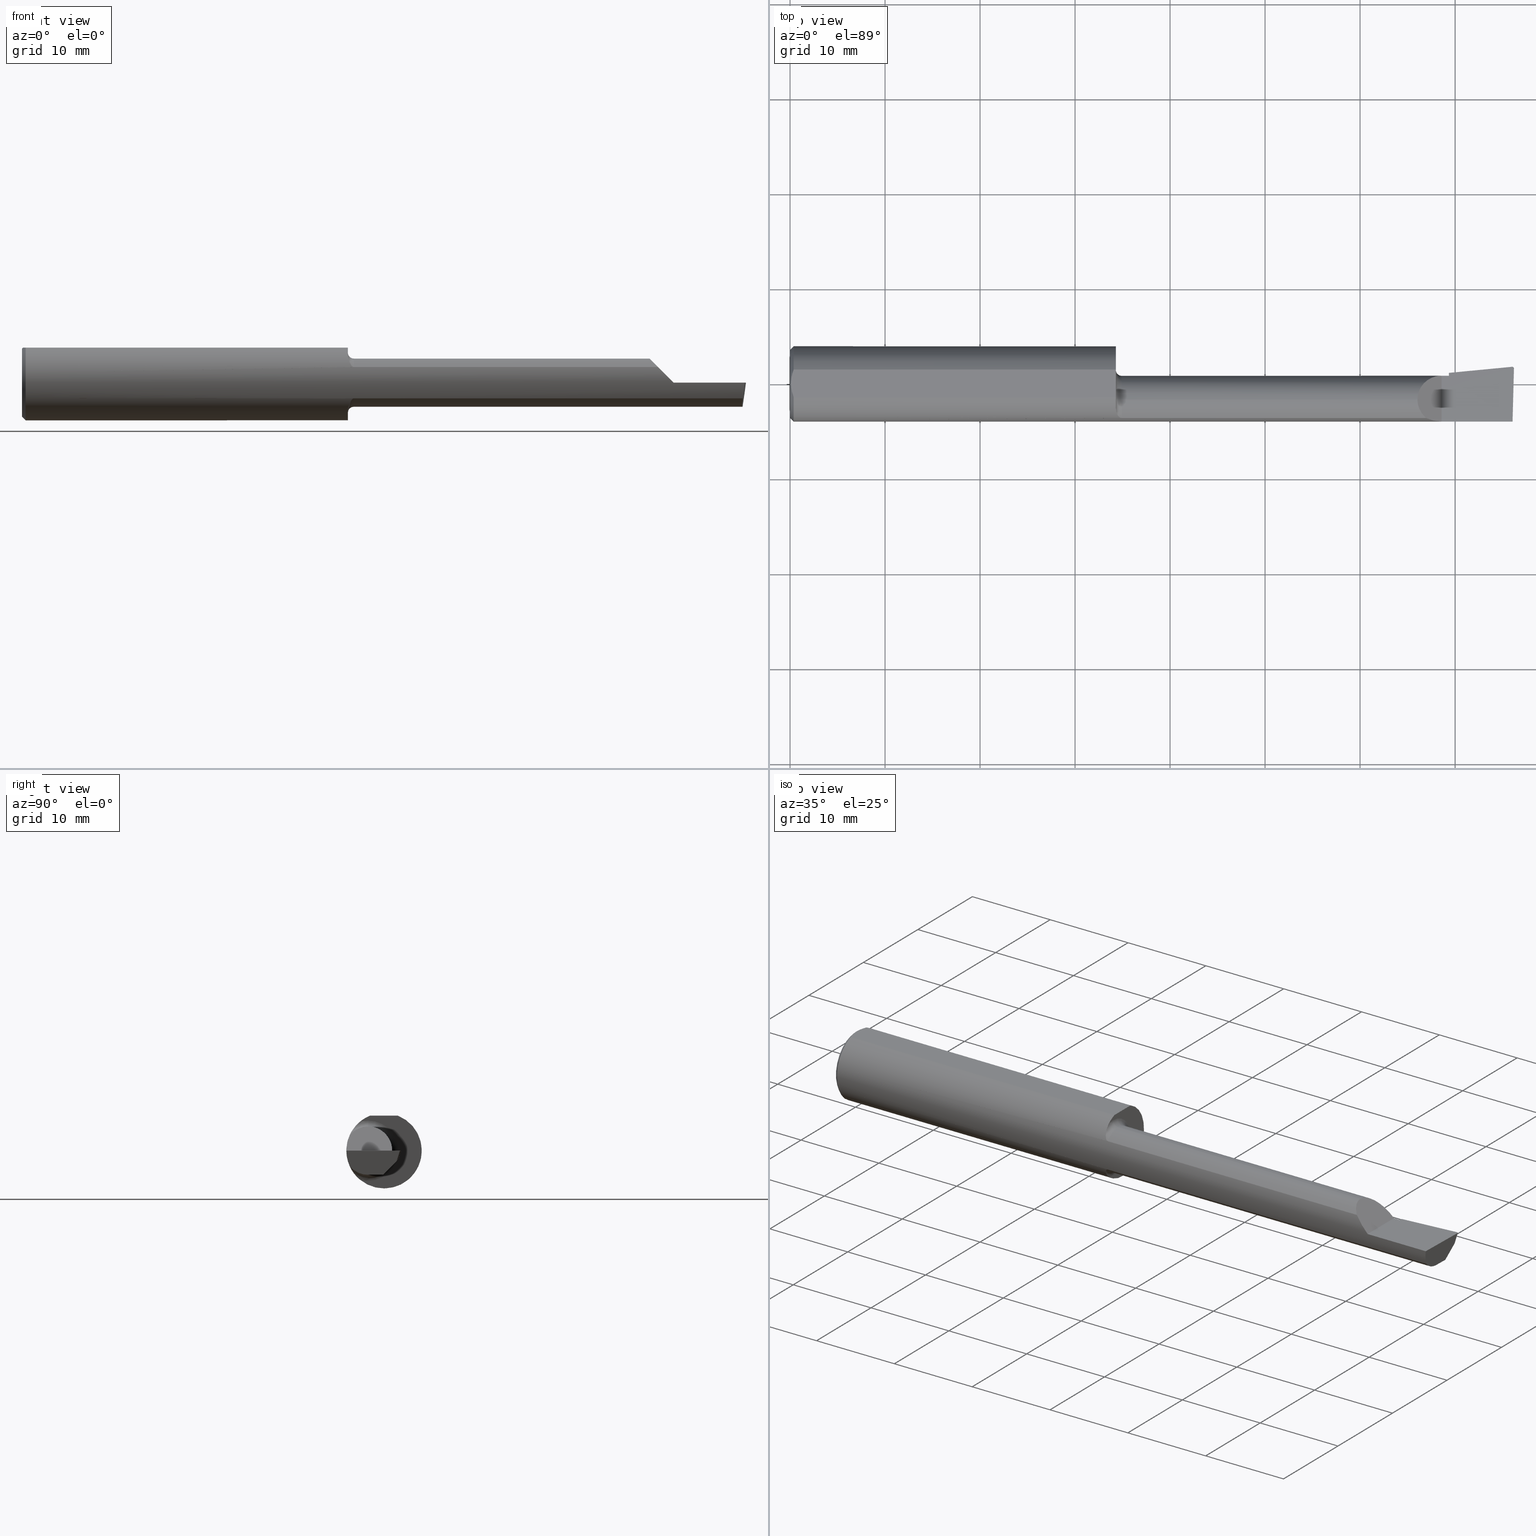
[diagram: canonical four-view strip — front | top / right | iso, engineering-drawing reading convention]
A machine part, canonical four-view strip (front | top / right | iso — engineering-drawing reading convention). The complete STEP part file that produces these views, byte-faithful:
ISO-10303-21;
HEADER;
FILE_DESCRIPTION (( 'STEP AP203' ),
    '1' );
FILE_NAME ('213573-B2301600R.STEP',
    '2024-04-11T21:29:54',
    ( '' ),
    ( '' ),
    'SwSTEP 2.0',
    'SolidWorks 2022',
    '' );
FILE_SCHEMA (( 'CONFIG_CONTROL_DESIGN' ));
ENDSEC;

DATA;
#1 = PLANE ( 'NONE',  #453 ) ;
#2 = CARTESIAN_POINT ( 'NONE',  ( 0.000000000000000000, -0.06599999999999998923, 0.000000000000000000 ) ) ;
#3 = ORIENTED_EDGE ( 'NONE', *, *, #805, .F. ) ;
#4 = CYLINDRICAL_SURFACE ( 'NONE', #440, 0.09989999999999998881 ) ;
#5 = CARTESIAN_POINT ( 'NONE',  ( 1.350000000000000311, 0.05756040305626788228, 0.1450999999999999512 ) ) ;
#6 = EDGE_LOOP ( 'NONE', ( #242, #39, #606, #406, #511, #331, #44, #317 ) ) ;
#7 = EDGE_CURVE ( 'NONE', #461, #334, #542, .T. ) ;
#8 = EDGE_CURVE ( 'NONE', #596, #362, #585, .T. ) ;
#9 = CARTESIAN_POINT ( 'NONE',  ( 2.973829965622097671, 0.01708137051743072524, -0.1480419698641638471 ) ) ;
#10 = APPROVAL ( #746, 'UNSPECIFIED' ) ;
#11 = DIRECTION ( 'NONE',  ( 1.000000000000000000, 0.000000000000000000, 0.000000000000000000 ) ) ;
#12 = VERTEX_POINT ( 'NONE', #125 ) ;
#13 = VECTOR ( 'NONE', #414, 39.37007874015748143 ) ;
#14 = DIRECTION ( 'NONE',  ( 0.000000000000000000, 0.9524855432518798404, -0.3045837978228185250 ) ) ;
#15 = CARTESIAN_POINT ( 'NONE',  ( 3.000000000000000444, -0.06599999999999998923, -0.09990000000000000269 ) ) ;
#16 = ORIENTED_EDGE ( 'NONE', *, *, #697, .F. ) ;
#17 = LINE ( 'NONE', #759, #728 ) ;
#18 = DIRECTION ( 'NONE',  ( -1.000000000000000000, -0.000000000000000000, -0.000000000000000000 ) ) ;
#19 = EDGE_CURVE ( 'NONE', #708, #420, #435, .T. ) ;
#20 = VERTEX_POINT ( 'NONE', #127 ) ;
#21 = EDGE_CURVE ( 'NONE', #320, #744, #117, .T. ) ;
#22 = CARTESIAN_POINT ( 'NONE',  ( 1.373328253254594511, -0.1419939393940947703, 0.06484544066737571444 ) ) ;
#23 = VERTEX_POINT ( 'NONE', #790 ) ;
#24 = CONICAL_SURFACE ( 'NONE', #477, 0.1560999999999999888, 0.7853981633974602694 ) ;
#25 = TOROIDAL_SURFACE ( 'NONE', #225, 0.1248999999999999139, 0.02499999999999993894 ) ;
#26 =( GEOMETRIC_REPRESENTATION_CONTEXT ( 3 ) GLOBAL_UNCERTAINTY_ASSIGNED_CONTEXT ( ( #264 ) ) GLOBAL_UNIT_ASSIGNED_CONTEXT ( ( #725, #122, #662 ) ) REPRESENTATION_CONTEXT ( 'NONE', 'WORKASPACE' ) );
#27 = CARTESIAN_POINT ( 'NONE',  ( 1.349999999999999423, -0.1044772303701486243, -0.1161670294028995520 ) ) ;
#28 = CARTESIAN_POINT ( 'NONE',  ( 0.004000000000000238608, 1.884449684559922719E-17, 0.1450999999999999790 ) ) ;
#29 = ORIENTED_EDGE ( 'NONE', *, *, #143, .T. ) ;
#30 = DIRECTION ( 'NONE',  ( 1.000000000000000000, 0.000000000000000000, 0.000000000000000000 ) ) ;
#31 = ADVANCED_FACE ( 'NONE', ( #681 ), #51, .F. ) ;
#32 = CARTESIAN_POINT ( 'NONE',  ( 1.350000000000000311, -0.09941818181818193323, 0.1203463132961160309 ) ) ;
#33 = PRODUCT ( '213573-B2301600R', '213573-B2301600R', '', ( #175 ) ) ;
#34 = ORIENTED_EDGE ( 'NONE', *, *, #321, .F. ) ;
#35 = EDGE_CURVE ( 'NONE', #159, #23, #328, .T. ) ;
#36 = CARTESIAN_POINT ( 'NONE',  ( 2.600099999999999412, -0.09571819601686556989, 0.09989999999999998881 ) ) ;
#37 = ADVANCED_FACE ( 'NONE', ( #312 ), #796, .F. ) ;
#38 = CARTESIAN_POINT ( 'NONE',  ( 2.993512870449295704, 0.07124616680637038679, -8.537024980200822558E-17 ) ) ;
#39 = ORIENTED_EDGE ( 'NONE', *, *, #506, .T. ) ;
#40 = VECTOR ( 'NONE', #169, 39.37007874015748143 ) ;
#41 = DIRECTION ( 'NONE',  ( 0.000000000000000000, 0.000000000000000000, -1.000000000000000000 ) ) ;
#42 = AXIS2_PLACEMENT_3D ( 'NONE', #456, #30, #341 ) ;
#43 = DIRECTION ( 'NONE',  ( 0.000000000000000000, 0.000000000000000000, 1.000000000000000000 ) ) ;
#44 = ORIENTED_EDGE ( 'NONE', *, *, #641, .F. ) ;
#45 = PERSON_AND_ORGANIZATION ( #121, #133 ) ;
#46 = CARTESIAN_POINT ( 'NONE',  ( 1.350000000000000311, 0.05889999999999991770, 0.000000000000000000 ) ) ;
#47 = EDGE_CURVE ( 'NONE', #296, #159, #174, .T. ) ;
#48 = ORIENTED_EDGE ( 'NONE', *, *, #512, .F. ) ;
#49 = DATE_AND_TIME ( #310, #535 ) ;
#50 = CARTESIAN_POINT ( 'NONE',  ( 0.01499999999999999424, -0.05756040305626774350, 0.1451000000000000068 ) ) ;
#51 = PLANE ( 'NONE',  #599 ) ;
#52 = PERSON_AND_ORGANIZATION_ROLE ( 'creator' ) ;
#53 = DIRECTION ( 'NONE',  ( -1.000000000000000000, -0.000000000000000000, -0.000000000000000000 ) ) ;
#54 = VECTOR ( 'NONE', #591, 39.37007874015748143 ) ;
#55 = DIRECTION ( 'NONE',  ( -1.460108795288649722E-16, 0.000000000000000000, -1.000000000000000000 ) ) ;
#56 = CARTESIAN_POINT ( 'NONE',  ( 2.999910038027484571, 0.06846449087509602627, -6.926818219033491601E-17 ) ) ;
#57 = CARTESIAN_POINT ( 'NONE',  ( 2.729999999999999982, 0.04248346027991091456, -0.01112992196204301044 ) ) ;
#58 = VERTEX_POINT ( 'NONE', #800 ) ;
#59 = COORDINATED_UNIVERSAL_TIME_OFFSET ( 8, 0, .BEHIND. ) ;
#60 = DIRECTION ( 'NONE',  ( 0.000000000000000000, 0.000000000000000000, 1.000000000000000000 ) ) ;
#61 = ADVANCED_FACE ( 'NONE', ( #241 ), #530, .T. ) ;
#62 = ORIENTED_EDGE ( 'NONE', *, *, #19, .F. ) ;
#63 = ORIENTED_EDGE ( 'NONE', *, *, #74, .T. ) ;
#64 = APPROVAL_DATE_TIME ( #496, #10 ) ;
#65 = FACE_OUTER_BOUND ( 'NONE', #738, .T. ) ;
#66 = VECTOR ( 'NONE', #141, 39.37007874015748143 ) ;
#67 = VECTOR ( 'NONE', #633, 39.37007874015748143 ) ;
#68 = DIRECTION ( 'NONE',  ( 0.000000000000000000, 0.000000000000000000, -1.000000000000000000 ) ) ;
#69 = PERSON_AND_ORGANIZATION ( #121, #133 ) ;
#70 = DIRECTION ( 'NONE',  ( 0.000000000000000000, 0.000000000000000000, 1.000000000000000000 ) ) ;
#71 = CARTESIAN_POINT ( 'NONE',  ( 1.375000000000000222, -0.06599999999999998923, 0.09989999999999990554 ) ) ;
#72 = EDGE_CURVE ( 'NONE', #384, #708, #250, .T. ) ;
#73 = ORIENTED_EDGE ( 'NONE', *, *, #463, .F. ) ;
#74 = EDGE_CURVE ( 'NONE', #366, #415, #114, .T. ) ;
#75 = CC_DESIGN_DATE_AND_TIME_ASSIGNMENT ( #230, #363, ( #732 ) ) ;
#76 = CARTESIAN_POINT ( 'NONE',  ( 0.004000000000000238608, 1.884449684559922719E-17, 0.1450999999999999790 ) ) ;
#77 = CARTESIAN_POINT ( 'NONE',  ( 1.350000000000000311, -0.09941818181818193323, -0.1203463132961160309 ) ) ;
#78 = ORIENTED_EDGE ( 'NONE', *, *, #21, .F. ) ;
#79 = CARTESIAN_POINT ( 'NONE',  ( 2.988314669075955443, 0.06002476558951529845, -0.03500000000000000333 ) ) ;
#80 = DIRECTION ( 'NONE',  ( 0.000000000000000000, 0.000000000000000000, -1.000000000000000000 ) ) ;
#81 = CIRCLE ( 'NONE', #601, 0.09989999999999990554 ) ;
#82 = ORIENTED_EDGE ( 'NONE', *, *, #463, .T. ) ;
#83 = LOCAL_TIME ( 14, 29, 54.00000000000000000, #139 ) ;
#84 = EDGE_CURVE ( 'NONE', #420, #455, #464, .T. ) ;
#85 = DIRECTION ( 'NONE',  ( -1.000000000000000000, 0.000000000000000000, -0.000000000000000000 ) ) ;
#86 = ORIENTED_EDGE ( 'NONE', *, *, #253, .T. ) ;
#87 = FACE_OUTER_BOUND ( 'NONE', #346, .T. ) ;
#88 = CARTESIAN_POINT ( 'NONE',  ( 1.352040506864490954, -0.1180407066556270063, 0.1023492120876696165 ) ) ;
#89 = ORIENTED_EDGE ( 'NONE', *, *, #433, .F. ) ;
#90 = CARTESIAN_POINT ( 'NONE',  ( 2.988449336789478661, 0.06035299460345531358, -0.03397357182854629509 ) ) ;
#91 = CARTESIAN_POINT ( 'NONE',  ( 0.008818052469297050708, -0.03886761757380372689, 0.1451000000000000068 ) ) ;
#92 = ORIENTED_EDGE ( 'NONE', *, *, #129, .F. ) ;
#93 = AXIS2_PLACEMENT_3D ( 'NONE', #274, #206, #256 ) ;
#94 = AXIS2_PLACEMENT_3D ( 'NONE', #344, #103, #161 ) ;
#95 = CC_DESIGN_APPROVAL ( #443, ( #732 ) ) ;
#96 = CARTESIAN_POINT ( 'NONE',  ( 2.635154559332284041, -0.1419939393939393946, 0.06484544066771590065 ) ) ;
#97 = CARTESIAN_POINT ( 'NONE',  ( 2.641479934881072023, 0.03390000000000000652, 0.05852006511892776652 ) ) ;
#98 = ORIENTED_EDGE ( 'NONE', *, *, #475, .F. ) ;
#99 = EDGE_CURVE ( 'NONE', #217, #461, #742, .T. ) ;
#100 = CARTESIAN_POINT ( 'NONE',  ( 2.988516598403285762, 0.06004420917224705806, -0.03500000000000003109 ) ) ;
#101 = CYLINDRICAL_SURFACE ( 'NONE', #492, 0.1560999999999999888 ) ;
#102 = VERTEX_POINT ( 'NONE', #77 ) ;
#103 = DIRECTION ( 'NONE',  ( -0.09165774897393340337, 0.9519021185660614393, -0.2923717047227301635 ) ) ;
#104 = ORIENTED_EDGE ( 'NONE', *, *, #581, .T. ) ;
#105 = VECTOR ( 'NONE', #576, 39.37007874015748143 ) ;
#106 = PERSON_AND_ORGANIZATION ( #121, #133 ) ;
#107 = CARTESIAN_POINT ( 'NONE',  ( 2.999806390372760756, 0.06450634663141942282, -6.825008366731280479E-17 ) ) ;
#108 = ORIENTED_EDGE ( 'NONE', *, *, #617, .T. ) ;
#109 = LENGTH_MEASURE_WITH_UNIT ( LENGTH_MEASURE( 0.02539999999999999897 ), #671 );
#110 = LINE ( 'NONE', #386, #808 ) ;
#111 = CARTESIAN_POINT ( 'NONE',  ( 3.000000000000000444, -0.2500000000000000555, -6.829619984160658046E-17 ) ) ;
#112 = CARTESIAN_POINT ( 'NONE',  ( 2.635154559332284041, -0.1419939393939393946, 0.06484544066771590065 ) ) ;
#113 = CARTESIAN_POINT ( 'NONE',  ( 2.988915081933074980, 0.06003986091833705963, -0.03504403198038582440 ) ) ;
#114 = LINE ( 'NONE', #308, #291 ) ;
#115 = ORIENTED_EDGE ( 'NONE', *, *, #72, .T. ) ;
#116 = CALENDAR_DATE ( 2024, 11, 4 ) ;
#117 = CIRCLE ( 'NONE', #263, 0.1560999999999999888 ) ;
#118 = DIRECTION ( 'NONE',  ( 0.000000000000000000, 0.000000000000000000, 1.000000000000000000 ) ) ;
#119 = AXIS2_PLACEMENT_3D ( 'NONE', #301, #53, #60 ) ;
#120 = DIRECTION ( 'NONE',  ( 0.000000000000000000, 0.000000000000000000, 1.000000000000000000 ) ) ;
#121 = PERSON ( 'UNSPECIFIED', 'UNSPECIFIED', 'UNSPECIFIED', ('UNSPECIFIED'), ('UNSPECIFIED'), ('UNSPECIFIED') ) ;
#122 =( NAMED_UNIT ( * ) PLANE_ANGLE_UNIT ( ) SI_UNIT ( $, .RADIAN. ) );
#123 = EDGE_CURVE ( 'NONE', #334, #485, #392, .T. ) ;
#124 = CARTESIAN_POINT ( 'NONE',  ( 0.005030132703184962174, 0.01970541148932064557, 0.1451000000000000068 ) ) ;
#125 = CARTESIAN_POINT ( 'NONE',  ( 2.729999999999999982, -0.02781117900520262143, -0.09990000000000000269 ) ) ;
#126 = ORIENTED_EDGE ( 'NONE', *, *, #433, .T. ) ;
#127 = CARTESIAN_POINT ( 'NONE',  ( 1.350000000000000311, -0.06599999999999998923, 0.1248999999999999139 ) ) ;
#128 = CARTESIAN_POINT ( 'NONE',  ( 3.010979566536825303, 0.06220714699351694715, -0.03500000000000000333 ) ) ;
#129 = EDGE_CURVE ( 'NONE', #590, #362, #152, .T. ) ;
#130 = AXIS2_PLACEMENT_3D ( 'NONE', #580, #18, #507 ) ;
#131 = VECTOR ( 'NONE', #350, 39.37007874015748854 ) ;
#132 = CARTESIAN_POINT ( 'NONE',  ( 1.350000000000000311, 0.2061000000000000332, 0.1450999999999999512 ) ) ;
#133 = ORGANIZATION ( 'UNSPECIFIED', 'UNSPECIFIED', '' ) ;
#134 = CC_DESIGN_PERSON_AND_ORGANIZATION_ASSIGNMENT ( #786, #52, ( #732 ) ) ;
#135 = ORIENTED_EDGE ( 'NONE', *, *, #349, .T. ) ;
#136 = DIRECTION ( 'NONE',  ( -1.000000000000000000, -0.000000000000000000, -0.000000000000000000 ) ) ;
#137 = DIRECTION ( 'NONE',  ( -0.000000000000000000, 0.000000000000000000, 1.000000000000000000 ) ) ;
#138 = ORIENTED_EDGE ( 'NONE', *, *, #745, .T. ) ;
#139 = COORDINATED_UNIVERSAL_TIME_OFFSET ( 8, 0, .BEHIND. ) ;
#140 = CARTESIAN_POINT ( 'NONE',  ( 2.700000000000000178, -0.1560999999999999888, -2.449293598294708386E-17 ) ) ;
#141 = DIRECTION ( 'NONE',  ( 0.000000000000000000, 1.000000000000000000, 0.000000000000000000 ) ) ;
#142 = ORIENTED_EDGE ( 'NONE', *, *, #407, .F. ) ;
#143 = EDGE_CURVE ( 'NONE', #523, #571, #688, .T. ) ;
#144 = DIRECTION ( 'NONE',  ( -0.9953961983671800740, -0.09584575252021028391, 0.000000000000000000 ) ) ;
#145 = DIRECTION ( 'NONE',  ( -0.000000000000000000, 0.000000000000000000, 1.000000000000000000 ) ) ;
#146 = AXIS2_PLACEMENT_3D ( 'NONE', #307, #364, #618 ) ;
#147 = ORIENTED_EDGE ( 'NONE', *, *, #178, .F. ) ;
#148 = APPROVAL_PERSON_ORGANIZATION ( #669, #381, #722 ) ;
#149 = ADVANCED_FACE ( 'NONE', ( #446 ), #566, .T. ) ;
#150 = CARTESIAN_POINT ( 'NONE',  ( 2.988314669075955443, 0.06002476558951529845, -0.03500000000000000333 ) ) ;
#151 = PRODUCT_RELATED_PRODUCT_CATEGORY ( 'detail', '', ( #33 ) ) ;
#152 = LINE ( 'NONE', #646, #237 ) ;
#153 = ORIENTED_EDGE ( 'NONE', *, *, #602, .T. ) ;
#154 = CARTESIAN_POINT ( 'NONE',  ( 2.973829965622097671, 0.01708137051743072524, -0.1480419698641638471 ) ) ;
#155 = CARTESIAN_POINT ( 'NONE',  ( 0.01161840624095555018, -0.04838974479540033430, 0.1451000000000000345 ) ) ;
#156 = VERTEX_POINT ( 'NONE', #323 ) ;
#157 = CARTESIAN_POINT ( 'NONE',  ( 2.612547924827750112, -0.1227037540429563867, 0.08745207517224931615 ) ) ;
#158 = CARTESIAN_POINT ( 'NONE',  ( 1.353262464810605969, -0.1222000088982462124, 0.09733625715976103321 ) ) ;
#159 = VERTEX_POINT ( 'NONE', #573 ) ;
#160 = VECTOR ( 'NONE', #294, 39.37007874015748143 ) ;
#161 = DIRECTION ( 'NONE',  ( 0.000000000000000000, 0.2936076258024058472, 0.9559260233253795702 ) ) ;
#162 = CARTESIAN_POINT ( 'NONE',  ( 1.363017092274625641, -0.1374043365808045869, 0.07413505991998654843 ) ) ;
#163 = B_SPLINE_CURVE_WITH_KNOTS ( 'NONE', 3,
 ( #32, #409, #290, #88, #158, #649, #336, #162, #777, #537, #227, #584, #22, #405 ),
 .UNSPECIFIED., .F., .F.,
 ( 4, 2, 2, 2, 2, 2, 4 ),
 ( 0.0001856976868807112932, 0.0006805519038525574115, 0.001175406120824403584, 0.001670260337796249757, 0.001917687446282172409, 0.002041401000525133735, 0.002165114554768095279 ),
 .UNSPECIFIED. ) ;
#164 = ORIENTED_EDGE ( 'NONE', *, *, #207, .F. ) ;
#165 = CARTESIAN_POINT ( 'NONE',  ( 0.000000000000000000, 0.000000000000000000, -0.1410999999999996146 ) ) ;
#166 = DIRECTION ( 'NONE',  ( -1.000000000000000000, -0.000000000000000000, -0.000000000000000000 ) ) ;
#167 = ORIENTED_EDGE ( 'NONE', *, *, #7, .T. ) ;
#168 = ADVANCED_FACE ( 'NONE', ( #333 ), #24, .T. ) ;
#169 = DIRECTION ( 'NONE',  ( -1.000000000000000000, -0.000000000000000000, -0.000000000000000000 ) ) ;
#170 = ORIENTED_EDGE ( 'NONE', *, *, #123, .F. ) ;
#171 = AXIS2_PLACEMENT_3D ( 'NONE', #431, #561, #118 ) ;
#172 = CARTESIAN_POINT ( 'NONE',  ( 2.655587570325277813, -0.1513252362624135094, 0.04441242967472188580 ) ) ;
#173 = CARTESIAN_POINT ( 'NONE',  ( 2.993512870449295704, 0.07124616680637038679, -8.537024980200822558E-17 ) ) ;
#174 = LINE ( 'NONE', #613, #726 ) ;
#175 = MECHANICAL_CONTEXT ( 'NONE', #680, 'mechanical' ) ;
#176 = CARTESIAN_POINT ( 'NONE',  ( 2.729999999999999982, 0.01597273520979031886, -0.05476916396232721362 ) ) ;
#177 = ORIENTED_EDGE ( 'NONE', *, *, #791, .F. ) ;
#178 = EDGE_CURVE ( 'NONE', #708, #384, #278, .T. ) ;
#179 = ORIENTED_EDGE ( 'NONE', *, *, #379, .T. ) ;
#180 = PERSON_AND_ORGANIZATION_ROLE ( 'classification_officer' ) ;
#181 = CARTESIAN_POINT ( 'NONE',  ( 2.994639902345814786, 0.05561945628686253834, -0.04016861643763527945 ) ) ;
#182 = DIRECTION ( 'NONE',  ( 0.000000000000000000, -0.2936076258024059582, -0.9559260233253797923 ) ) ;
#183 = EDGE_CURVE ( 'NONE', #359, #420, #439, .T. ) ;
#184 = ORIENTED_EDGE ( 'NONE', *, *, #297, .F. ) ;
#185 = APPLICATION_CONTEXT ( 'configuration controlled 3d designs of mechanical parts and assemblies' ) ;
#186 = AXIS2_PLACEMENT_3D ( 'NONE', #187, #672, #480 ) ;
#187 = CARTESIAN_POINT ( 'NONE',  ( 1.350000000000000311, -0.06599999999999998923, 0.000000000000000000 ) ) ;
#188 = CARTESIAN_POINT ( 'NONE',  ( 2.986434241799654554, -0.1419939393939393391, -0.06484544066771595616 ) ) ;
#189 = CARTESIAN_POINT ( 'NONE',  ( 2.729999999999999982, 0.02031953758082135145, -0.05028864118101789016 ) ) ;
#190 = VERTEX_POINT ( 'NONE', #71 ) ;
#191 = ORIENTED_EDGE ( 'NONE', *, *, #349, .F. ) ;
#192 = EDGE_CURVE ( 'NONE', #596, #23, #378, .T. ) ;
#193 = LINE ( 'NONE', #684, #105 ) ;
#194 = CARTESIAN_POINT ( 'NONE',  ( 2.729999999999999982, -0.2500000000000000555, -2.887326236881301627E-17 ) ) ;
#195 = VERTEX_POINT ( 'NONE', #5 ) ;
#196 = DIRECTION ( 'NONE',  ( -0.000000000000000000, 1.000000000000000000, -0.000000000000000000 ) ) ;
#197 = VECTOR ( 'NONE', #498, 39.37007874015748143 ) ;
#198 = CIRCLE ( 'NONE', #146, 0.1248999999999999139 ) ;
#199 = FACE_OUTER_BOUND ( 'NONE', #503, .T. ) ;
#200 = CC_DESIGN_APPROVAL ( #381, ( #533 ) ) ;
#201 = ORIENTED_EDGE ( 'NONE', *, *, #7, .F. ) ;
#202 = DIRECTION ( 'NONE',  ( 0.000000000000000000, 0.000000000000000000, 1.000000000000000000 ) ) ;
#203 = DIRECTION ( 'NONE',  ( 1.000000000000000000, 0.000000000000000000, 0.000000000000000000 ) ) ;
#204 = ORIENTED_EDGE ( 'NONE', *, *, #697, .T. ) ;
#205 = DIRECTION ( 'NONE',  ( -1.000000000000000000, -0.000000000000000000, -0.000000000000000000 ) ) ;
#206 = DIRECTION ( 'NONE',  ( -1.000000000000000000, -0.000000000000000000, -0.000000000000000000 ) ) ;
#207 = EDGE_CURVE ( 'NONE', #296, #12, #266, .T. ) ;
#208 = MANIFOLD_SOLID_BREP ( 'Fillet1', #400 ) ;
#209 = ORIENTED_EDGE ( 'NONE', *, *, #21, .T. ) ;
#210 = CYLINDRICAL_SURFACE ( 'NONE', #468, 0.006500000000000001436 ) ;
#211 = DIRECTION ( 'NONE',  ( 0.000000000000000000, 0.000000000000000000, 1.000000000000000000 ) ) ;
#212 = VECTOR ( 'NONE', #704, 39.37007874015748143 ) ;
#213 = VECTOR ( 'NONE', #240, 39.37007874015748143 ) ;
#214 = ORIENTED_EDGE ( 'NONE', *, *, #682, .F. ) ;
#215 = PLANE ( 'NONE',  #42 ) ;
#216 = CARTESIAN_POINT ( 'NONE',  ( 2.729999999999999982, 0.03515189196873296645, -0.03500000000000000333 ) ) ;
#217 = VERTEX_POINT ( 'NONE', #577 ) ;
#218 = CARTESIAN_POINT ( 'NONE',  ( 1.350000000000000311, -0.09941818181818193323, -0.1203463132961160309 ) ) ;
#219 = CARTESIAN_POINT ( 'NONE',  ( 2.700000000000000178, 0.03389999999999994407, -2.449293598294708386E-17 ) ) ;
#220 = ORIENTED_EDGE ( 'NONE', *, *, #321, .T. ) ;
#221 = FACE_OUTER_BOUND ( 'NONE', #534, .T. ) ;
#222 = DIRECTION ( 'NONE',  ( 0.000000000000000000, 0.000000000000000000, 1.000000000000000000 ) ) ;
#223 = EDGE_LOOP ( 'NONE', ( #651, #647, #164 ) ) ;
#224 = VECTOR ( 'NONE', #425, 39.37007874015748143 ) ;
#225 = AXIS2_PLACEMENT_3D ( 'NONE', #629, #636, #70 ) ;
#226 = CARTESIAN_POINT ( 'NONE',  ( 1.364650979716348633, -0.1387334617349067212, -0.07160083655282355186 ) ) ;
#227 = CARTESIAN_POINT ( 'NONE',  ( 1.368988484139260775, -0.1409410548628159121, 0.06710952210203038892 ) ) ;
#228 = EDGE_LOOP ( 'NONE', ( #715, #138, #734, #201 ) ) ;
#229 = ADVANCED_FACE ( 'NONE', ( #751 ), #630, .F. ) ;
#230 = DATE_AND_TIME ( #116, #549 ) ;
#231 = CARTESIAN_POINT ( 'NONE',  ( 2.993108609909204798, 0.07123643460739943756, -6.827509968873246391E-17 ) ) ;
#232 = EDGE_LOOP ( 'NONE', ( #142, #438, #343, #220 ) ) ;
#233 = ADVANCED_FACE ( 'NONE', ( #696 ), #270, .F. ) ;
#234 = DIRECTION ( 'NONE',  ( 0.000000000000000000, 0.000000000000000000, 1.000000000000000000 ) ) ;
#235 = DIRECTION ( 'NONE',  ( 0.000000000000000000, 0.000000000000000000, -1.000000000000000000 ) ) ;
#236 = ORIENTED_EDGE ( 'NONE', *, *, #745, .F. ) ;
#237 = VECTOR ( 'NONE', #454, 39.37007874015748854 ) ;
#238 = TOROIDAL_SURFACE ( 'NONE', #702, 0.1248999999999999139, 0.02499999999999993894 ) ;
#239 = PERSON_AND_ORGANIZATION ( #121, #133 ) ;
#240 = DIRECTION ( 'NONE',  ( 0.000000000000000000, -0.6963153109074925462, -0.7177360153954948085 ) ) ;
#241 = FACE_OUTER_BOUND ( 'NONE', #756, .T. ) ;
#242 = ORIENTED_EDGE ( 'NONE', *, *, #367, .T. ) ;
#243 = DATE_AND_TIME ( #730, #758 ) ;
#244 = CARTESIAN_POINT ( 'NONE',  ( 3.000000000000000444, 0.2061000000000000332, 0.1450999999999999512 ) ) ;
#245 = EDGE_CURVE ( 'NONE', #195, #320, #514, .T. ) ;
#246 = ORIENTED_EDGE ( 'NONE', *, *, #281, .T. ) ;
#247 = APPROVAL_ROLE ( '' ) ;
#248 = CARTESIAN_POINT ( 'NONE',  ( 2.994029609882220999, -0.1561000000000000165, -6.741913824051282974E-17 ) ) ;
#249 = DIRECTION ( 'NONE',  ( -1.000000000000000000, -0.000000000000000000, -0.000000000000000000 ) ) ;
#250 = CIRCLE ( 'NONE', #712, 0.1410999999999996146 ) ;
#251 = AXIS2_PLACEMENT_3D ( 'NONE', #9, #374, #14 ) ;
#252 = DIRECTION ( 'NONE',  ( 0.000000000000000000, 1.000000000000000000, -1.656870447394628358E-16 ) ) ;
#253 = EDGE_CURVE ( 'NONE', #508, #296, #677, .T. ) ;
#254 =( BOUNDED_CURVE ( )  B_SPLINE_CURVE ( 3, ( #469, #792, #172, #112 ),
 .UNSPECIFIED., .F., .F. ) 
 B_SPLINE_CURVE_WITH_KNOTS ( ( 4, 4 ),
 ( 4.712388980384689674, 5.140782042693055054 ),
 .UNSPECIFIED. ) 
 CURVE ( )  GEOMETRIC_REPRESENTATION_ITEM ( )  RATIONAL_B_SPLINE_CURVE ( ( 1.000000000000000000, 0.9847649979006014576, 0.9847649979006014576, 1.000000000000000000 ) ) 
 REPRESENTATION_ITEM ( '' )  );
#255 = CARTESIAN_POINT ( 'NONE',  ( 2.986434241799654554, -0.1419939393939393391, -0.06484544066771595616 ) ) ;
#256 = DIRECTION ( 'NONE',  ( 0.000000000000000000, 0.000000000000000000, 1.000000000000000000 ) ) ;
#257 = ORIENTED_EDGE ( 'NONE', *, *, #325, .F. ) ;
#258 = CALENDAR_DATE ( 2024, 11, 4 ) ;
#259 = CARTESIAN_POINT ( 'NONE',  ( 1.375000000000000222, -0.1419939393939392003, 0.06484544066771598392 ) ) ;
#260 = DIRECTION ( 'NONE',  ( -1.000000000000000000, -0.000000000000000000, -0.000000000000000000 ) ) ;
#261 = ORIENTED_EDGE ( 'NONE', *, *, #35, .T. ) ;
#262 = FACE_OUTER_BOUND ( 'NONE', #603, .T. ) ;
#263 = AXIS2_PLACEMENT_3D ( 'NONE', #481, #357, #68 ) ;
#264 = UNCERTAINTY_MEASURE_WITH_UNIT (LENGTH_MEASURE( 1.000000000000000082E-05 ), #725, 'distance_accuracy_value', 'NONE');
#265 = VECTOR ( 'NONE', #521, 39.37007874015748854 ) ;
#266 = LINE ( 'NONE', #330, #197 ) ;
#267 = ORIENTED_EDGE ( 'NONE', *, *, #524, .F. ) ;
#268 = LINE ( 'NONE', #513, #795 ) ;
#269 = ADVANCED_FACE ( 'NONE', ( #199 ), #764, .T. ) ;
#270 = PLANE ( 'NONE',  #779 ) ;
#271 = ADVANCED_FACE ( 'NONE', ( #388 ), #442, .F. ) ;
#272 = ORIENTED_EDGE ( 'NONE', *, *, #123, .T. ) ;
#273 = CARTESIAN_POINT ( 'NONE',  ( 2.986434241799654554, -0.1419939393939393391, -0.06484544066771595616 ) ) ;
#274 = CARTESIAN_POINT ( 'NONE',  ( 0.01499999999999999424, 0.000000000000000000, 0.000000000000000000 ) ) ;
#275 = EDGE_LOOP ( 'NONE', ( #705, #553, #810, #482, #380, #92 ) ) ;
#276 = DIRECTION ( 'NONE',  ( -0.1240019227988374689, -0.3022330132596593999, -0.9451342385281455982 ) ) ;
#277 = CARTESIAN_POINT ( 'NONE',  ( 0.01499999999999999424, 1.911673653469018068E-17, 0.1560999999999999888 ) ) ;
#278 = CIRCLE ( 'NONE', #130, 0.1410999999999996146 ) ;
#279 = CIRCLE ( 'NONE', #427, 0.09989999999999998881 ) ;
#280 = ORIENTED_EDGE ( 'NONE', *, *, #35, .F. ) ;
#281 = EDGE_CURVE ( 'NONE', #320, #455, #718, .T. ) ;
#282 = CC_DESIGN_PERSON_AND_ORGANIZATION_ASSIGNMENT ( #45, #180, ( #305 ) ) ;
#283 = LINE ( 'NONE', #536, #54 ) ;
#284 = CARTESIAN_POINT ( 'NONE',  ( 0.000000000000000000, 1.819825143532964315E-17, 0.1410999999999996146 ) ) ;
#285 = VERTEX_POINT ( 'NONE', #219 ) ;
#286 = CARTESIAN_POINT ( 'NONE',  ( 1.368987086440956347, -0.1409404987250980346, -0.06711069163632696344 ) ) ;
#287 = CARTESIAN_POINT ( 'NONE',  ( 1.350000000000000311, -0.05756040305626776432, 0.1451000000000000068 ) ) ;
#288 = ORIENTED_EDGE ( 'NONE', *, *, #326, .F. ) ;
#289 = CARTESIAN_POINT ( 'NONE',  ( 2.995690841152387485, 0.06258158045839887218, -0.03309662379331436421 ) ) ;
#290 = CARTESIAN_POINT ( 'NONE',  ( 1.350415155711666593, -0.1091772789608304872, 0.1117554983051642081 ) ) ;
#291 = VECTOR ( 'NONE', #558, 39.37007874015748854 ) ;
#292 = EDGE_LOOP ( 'NONE', ( #778, #582, #34, #204 ) ) ;
#293 = VECTOR ( 'NONE', #166, 39.37007874015748143 ) ;
#294 = DIRECTION ( 'NONE',  ( 0.1053106618240762932, 0.6976485211320198054, 0.7086580314005344050 ) ) ;
#295 = CARTESIAN_POINT ( 'NONE',  ( 0.000000000000000000, -0.06599999999999998923, 0.09989999999999998881 ) ) ;
#296 = VERTEX_POINT ( 'NONE', #395 ) ;
#297 = EDGE_CURVE ( 'NONE', #156, #190, #470, .T. ) ;
#298 = COORDINATED_UNIVERSAL_TIME_OFFSET ( 8, 0, .BEHIND. ) ;
#299 = CARTESIAN_POINT ( 'NONE',  ( 2.729999999999999982, -0.01311981690363756871, -0.08475668844224143461 ) ) ;
#300 = ORIENTED_EDGE ( 'NONE', *, *, #281, .F. ) ;
#301 = CARTESIAN_POINT ( 'NONE',  ( 1.350000000000000311, -0.06599999999999998923, 0.000000000000000000 ) ) ;
#302 = DIRECTION ( 'NONE',  ( 0.000000000000000000, 0.000000000000000000, 1.000000000000000000 ) ) ;
#303 = ORIENTED_EDGE ( 'NONE', *, *, #99, .T. ) ;
#304 = AXIS2_PLACEMENT_3D ( 'NONE', #478, #608, #302 ) ;
#305 = SECURITY_CLASSIFICATION ( '', '', #353 ) ;
#306 = CC_DESIGN_DATE_AND_TIME_ASSIGNMENT ( #243, #421, ( #305 ) ) ;
#307 = CARTESIAN_POINT ( 'NONE',  ( 1.350000000000000311, -0.06599999999999998923, 0.000000000000000000 ) ) ;
#308 = CARTESIAN_POINT ( 'NONE',  ( 2.973829965622097671, 0.02327252654856794625, -0.1500217645500121488 ) ) ;
#309 = ORIENTED_EDGE ( 'NONE', *, *, #499, .F. ) ;
#310 = CALENDAR_DATE ( 2024, 11, 4 ) ;
#311 = FACE_OUTER_BOUND ( 'NONE', #563, .T. ) ;
#312 = FACE_OUTER_BOUND ( 'NONE', #678, .T. ) ;
#313 = DATE_AND_TIME ( #550, #588 ) ;
#314 = VECTOR ( 'NONE', #660, 39.37007874015748143 ) ;
#315 = LINE ( 'NONE', #436, #640 ) ;
#316 = DIRECTION ( 'NONE',  ( -1.000000000000000000, -0.000000000000000000, -0.000000000000000000 ) ) ;
#317 = ORIENTED_EDGE ( 'NONE', *, *, #143, .F. ) ;
#318 = DIRECTION ( 'NONE',  ( -0.9953961983671800740, -0.09584575252021031166, 0.000000000000000000 ) ) ;
#319 = CARTESIAN_POINT ( 'NONE',  ( 2.729999999999999982, 0.01597273520979031886, -0.05476916396232721362 ) ) ;
#320 = VERTEX_POINT ( 'NONE', #287 ) ;
#321 = EDGE_CURVE ( 'NONE', #631, #190, #518, .T. ) ;
#322 = DIRECTION ( 'NONE',  ( -1.000000000000000000, -0.000000000000000000, -0.000000000000000000 ) ) ;
#323 = CARTESIAN_POINT ( 'NONE',  ( 2.600099999999999412, -0.06599999999999998923, 0.09989999999999998881 ) ) ;
#324 = ORIENTED_EDGE ( 'NONE', *, *, #19, .T. ) ;
#325 = EDGE_CURVE ( 'NONE', #362, #296, #600, .T. ) ;
#326 = EDGE_CURVE ( 'NONE', #744, #631, #163, .T. ) ;
#327 = CC_DESIGN_PERSON_AND_ORGANIZATION_ASSIGNMENT ( #106, #604, ( #533 ) ) ;
#328 = CIRCLE ( 'NONE', #304, 0.09989999999999990554 ) ;
#329 = AXIS2_PLACEMENT_3D ( 'NONE', #383, #375, #754 ) ;
#330 = CARTESIAN_POINT ( 'NONE',  ( 2.729999999999999982, -0.06599999999999998923, -0.09990000000000000269 ) ) ;
#331 = ORIENTED_EDGE ( 'NONE', *, *, #581, .F. ) ;
#332 = PLANE ( 'NONE',  #94 ) ;
#333 = FACE_OUTER_BOUND ( 'NONE', #772, .T. ) ;
#334 = VERTEX_POINT ( 'NONE', #216 ) ;
#335 = CARTESIAN_POINT ( 'NONE',  ( 1.375000000000000222, -0.1419939393939393113, -0.06484544066771588677 ) ) ;
#336 = CARTESIAN_POINT ( 'NONE',  ( 1.358665904659251300, -0.1330436853938332664, 0.08186319721956639150 ) ) ;
#337 = ORIENTED_EDGE ( 'NONE', *, *, #720, .F. ) ;
#338 = CARTESIAN_POINT ( 'NONE',  ( 1.350000000000000311, -0.06599999999999997535, -0.1248999999999999139 ) ) ;
#339 = CARTESIAN_POINT ( 'NONE',  ( 0.005011318927233133005, -0.01959047621504276041, 0.1450999999999999790 ) ) ;
#340 = ORIENTED_EDGE ( 'NONE', *, *, #538, .T. ) ;
#341 = DIRECTION ( 'NONE',  ( 0.000000000000000000, 0.000000000000000000, -1.000000000000000000 ) ) ;
#342 = CARTESIAN_POINT ( 'NONE',  ( 2.992906680581874923, 0.07121699102466755305, -6.726049803458688058E-17 ) ) ;
#343 = ORIENTED_EDGE ( 'NONE', *, *, #326, .T. ) ;
#344 = CARTESIAN_POINT ( 'NONE',  ( 3.009953961983673043, 0.07285845752520220264, -6.829619984160658046E-17 ) ) ;
#345 = DIRECTION ( 'NONE',  ( 0.000000000000000000, -1.000000000000000000, 0.000000000000000000 ) ) ;
#346 = EDGE_LOOP ( 'NONE', ( #351, #115 ) ) ;
#347 = EDGE_CURVE ( 'NONE', #384, #667, #527, .T. ) ;
#348 = DIRECTION ( 'NONE',  ( 1.000000000000000000, 0.000000000000000000, 0.000000000000000000 ) ) ;
#349 = EDGE_CURVE ( 'NONE', #156, #285, #635, .T. ) ;
#350 = DIRECTION ( 'NONE',  ( 0.02617694830780385035, 0.9996573249755590362, -3.765352607662575481E-18 ) ) ;
#351 = ORIENTED_EDGE ( 'NONE', *, *, #178, .T. ) ;
#352 = CIRCLE ( 'NONE', #504, 0.1560999999999999888 ) ;
#353 = SECURITY_CLASSIFICATION_LEVEL ( 'unclassified' ) ;
#354 = CARTESIAN_POINT ( 'NONE',  ( 2.997312560284805638, 0.07124616680637020638, -6.888892218056962819E-17 ) ) ;
#355 = DIRECTION ( 'NONE',  ( 1.000000000000000000, 0.000000000000000000, 0.000000000000000000 ) ) ;
#356 = CARTESIAN_POINT ( 'NONE',  ( 0.004000000000000188301, 0.009855731042683137794, 0.1450999999999999790 ) ) ;
#357 = DIRECTION ( 'NONE',  ( 1.000000000000000000, 0.000000000000000000, 0.000000000000000000 ) ) ;
#358 =( BOUNDED_CURVE ( )  B_SPLINE_CURVE ( 3, ( #38, #787, #231, #342 ),
 .UNSPECIFIED., .F., .T. ) 
 B_SPLINE_CURVE_WITH_KNOTS ( ( 4, 4 ),
 ( 3.511516179717425690, 3.604018710825942495 ),
 .UNSPECIFIED. ) 
 CURVE ( )  GEOMETRIC_REPRESENTATION_ITEM ( )  RATIONAL_B_SPLINE_CURVE ( ( 1.000000000000000000, 0.9992870672494020834, 0.9992870672494020834, 1.000000000000000000 ) ) 
 REPRESENTATION_ITEM ( '' )  );
#359 = VERTEX_POINT ( 'NONE', #657 ) ;
#360 = DIRECTION ( 'NONE',  ( 0.000000000000000000, -1.656870447394628358E-16, -1.000000000000000000 ) ) ;
#361 = CARTESIAN_POINT ( 'NONE',  ( 0.01499999999999999424, 0.000000000000000000, -0.1560999999999999888 ) ) ;
#362 = VERTEX_POINT ( 'NONE', #473 ) ;
#363 = DATE_TIME_ROLE ( 'creation_date' ) ;
#364 = DIRECTION ( 'NONE',  ( -1.000000000000000000, -0.000000000000000000, -0.000000000000000000 ) ) ;
#365 = DIRECTION ( 'NONE',  ( -0.7071067811865445751, 0.000000000000000000, -0.7071067811865504593 ) ) ;
#366 = VERTEX_POINT ( 'NONE', #655 ) ;
#367 = EDGE_CURVE ( 'NONE', #523, #474, #723, .T. ) ;
#368 = CARTESIAN_POINT ( 'NONE',  ( 0.01499999999999999424, 0.05756040305626788228, 0.1450999999999999235 ) ) ;
#369 = DIRECTION ( 'NONE',  ( -1.000000000000000000, -0.000000000000000000, -0.000000000000000000 ) ) ;
#370 = CARTESIAN_POINT ( 'NONE',  ( 2.985763474991723232, -0.003183957434558186157, -0.09990000000000000269 ) ) ;
#371 = EDGE_CURVE ( 'NONE', #366, #58, #358, .T. ) ;
#372 = ORIENTED_EDGE ( 'NONE', *, *, #245, .F. ) ;
#373 = AXIS2_PLACEMENT_3D ( 'NONE', #763, #497, #632 ) ;
#374 = DIRECTION ( 'NONE',  ( -0.1240019227988374689, -0.3022330132596593999, -0.9451342385281455982 ) ) ;
#375 = DIRECTION ( 'NONE',  ( -1.000000000000000000, -0.000000000000000000, -0.000000000000000000 ) ) ;
#376 = ORIENTED_EDGE ( 'NONE', *, *, #74, .F. ) ;
#377 = DIRECTION ( 'NONE',  ( 0.000000000000000000, 0.000000000000000000, 1.000000000000000000 ) ) ;
#378 = LINE ( 'NONE', #570, #545 ) ;
#379 = EDGE_CURVE ( 'NONE', #455, #667, #495, .T. ) ;
#380 = ORIENTED_EDGE ( 'NONE', *, *, #8, .T. ) ;
#381 = APPROVAL ( #798, 'UNSPECIFIED' ) ;
#382 = DIRECTION ( 'NONE',  ( 1.000000000000000000, 0.000000000000000000, 0.000000000000000000 ) ) ;
#383 = CARTESIAN_POINT ( 'NONE',  ( 2.729999999999999982, -0.06599999999999998923, 0.000000000000000000 ) ) ;
#384 = VERTEX_POINT ( 'NONE', #284 ) ;
#385 = AXIS2_PLACEMENT_3D ( 'NONE', #622, #365, #729 ) ;
#386 = CARTESIAN_POINT ( 'NONE',  ( 0.000000000000000000, 0.05756040305626788228, 0.1450999999999999235 ) ) ;
#387 = AXIS2_PLACEMENT_3D ( 'NONE', #692, #85, #137 ) ;
#388 = FACE_OUTER_BOUND ( 'NONE', #719, .T. ) ;
#389 = VERTEX_POINT ( 'NONE', #522 ) ;
#390 = ADVANCED_FACE ( 'NONE', ( #774 ), #101, .T. ) ;
#391 = LINE ( 'NONE', #289, #160 ) ;
#392 = LINE ( 'NONE', #319, #212 ) ;
#393 = EDGE_LOOP ( 'NONE', ( #86, #748, #484, #184, #135, #104, #784, #48 ) ) ;
#394 = PLANE ( 'NONE',  #614 ) ;
#395 = CARTESIAN_POINT ( 'NONE',  ( 2.729999999999999982, -0.06599999999999998923, -0.09990000000000000269 ) ) ;
#396 = CC_DESIGN_PERSON_AND_ORGANIZATION_ASSIGNMENT ( #239, #413, ( #533 ) ) ;
#397 = ORIENTED_EDGE ( 'NONE', *, *, #47, .F. ) ;
#398 = CARTESIAN_POINT ( 'NONE',  ( 2.729999999999999982, 0.04590195698666438284, 0.000000000000000000 ) ) ;
#399 = CARTESIAN_POINT ( 'NONE',  ( 2.600099999999998968, -0.007479934881072191483, 0.09989999999999998881 ) ) ;
#400 = CLOSED_SHELL ( 'NONE', ( #761, #488, #149, #555, #516, #61, #269, #731, #229, #390, #476, #31, #37, #785, #168, #663, #491, #625, #673, #526, #271, #233, #616 ) ) ;
#401 = CIRCLE ( 'NONE', #428, 0.02499999999999993894 ) ;
#402 = EDGE_LOOP ( 'NONE', ( #689, #447, #752, #762, #108, #638, #89, #170 ) ) ;
#403 = CC_DESIGN_APPROVAL ( #10, ( #305 ) ) ;
#404 = CARTESIAN_POINT ( 'NONE',  ( 2.600099999999999412, -0.06599999999999998923, 0.09989999999999998881 ) ) ;
#405 = CARTESIAN_POINT ( 'NONE',  ( 1.375000000000000222, -0.1419939393939392003, 0.06484544066771598392 ) ) ;
#406 = ORIENTED_EDGE ( 'NONE', *, *, #567, .F. ) ;
#407 = EDGE_CURVE ( 'NONE', #20, #190, #401, .T. ) ;
#408 = DIRECTION ( 'NONE',  ( -1.000000000000000000, 0.000000000000000000, -0.000000000000000000 ) ) ;
#409 = CARTESIAN_POINT ( 'NONE',  ( 1.350000000000000311, -0.1044500923568690148, 0.1161894481365070009 ) ) ;
#410 = ADVANCED_BREP_SHAPE_REPRESENTATION ( '213573-B2301600R', ( #208, #479 ), #26 ) ;
#411 = ORIENTED_EDGE ( 'NONE', *, *, #192, .F. ) ;
#412 = DIMENSIONAL_EXPONENTS ( 1.000000000000000000, 0.000000000000000000, 0.000000000000000000, 0.000000000000000000, 0.000000000000000000, 0.000000000000000000, 0.000000000000000000 ) ;
#413 = PERSON_AND_ORGANIZATION_ROLE ( 'creator' ) ;
#414 = DIRECTION ( 'NONE',  ( -1.000000000000000000, 5.691349986800549142E-18, -0.000000000000000000 ) ) ;
#415 = VERTEX_POINT ( 'NONE', #794 ) ;
#416 = AXIS2_PLACEMENT_3D ( 'NONE', #531, #783, #43 ) ;
#417 = APPROVAL_STATUS ( 'not_yet_approved' ) ;
#418 = EDGE_CURVE ( 'NONE', #667, #359, #430, .T. ) ;
#419 = DIRECTION ( 'NONE',  ( -1.000000000000000000, -0.000000000000000000, -0.000000000000000000 ) ) ;
#420 = VERTEX_POINT ( 'NONE', #799 ) ;
#421 = DATE_TIME_ROLE ( 'classification_date' ) ;
#422 = PLANE ( 'NONE',  #769 ) ;
#423 = DIRECTION ( 'NONE',  ( 0.000000000000000000, 0.000000000000000000, -1.000000000000000000 ) ) ;
#424 = CARTESIAN_POINT ( 'NONE',  ( 0.01158831187866387127, 0.04830813087846574233, 0.1450999999999999512 ) ) ;
#425 = DIRECTION ( 'NONE',  ( 0.7071067811865390240, 0.000000000000000000, -0.7071067811865560104 ) ) ;
#426 = ORIENTED_EDGE ( 'NONE', *, *, #379, .F. ) ;
#427 = AXIS2_PLACEMENT_3D ( 'NONE', #789, #483, #736 ) ;
#428 = AXIS2_PLACEMENT_3D ( 'NONE', #462, #345, #235 ) ;
#429 = PERSON_AND_ORGANIZATION_ROLE ( 'design_owner' ) ;
#430 = B_SPLINE_CURVE_WITH_KNOTS ( 'NONE', 3,
 ( #607, #356, #124, #493, #424, #368 ),
 .UNSPECIFIED., .F., .F.,
 ( 4, 2, 4 ),
 ( 0.002889203944960327779, 0.003632851267233512538, 0.004376498589506697297 ),
 .UNSPECIFIED. ) ;
#431 = CARTESIAN_POINT ( 'NONE',  ( 0.000000000000000000, -0.06599999999999998923, 0.000000000000000000 ) ) ;
#432 = CARTESIAN_POINT ( 'NONE',  ( 0.01499999999999999424, 0.000000000000000000, 0.000000000000000000 ) ) ;
#433 = EDGE_CURVE ( 'NONE', #485, #508, #605, .T. ) ;
#434 = CARTESIAN_POINT ( 'NONE',  ( 2.991270569402208590, -0.1560999999999999888, -0.02246288137099541199 ) ) ;
#435 = LINE ( 'NONE', #361, #224 ) ;
#436 = CARTESIAN_POINT ( 'NONE',  ( 2.700000000000000178, -0.2500000000000000555, -2.449293598294708386E-17 ) ) ;
#437 = DIRECTION ( 'NONE',  ( -0.9922060308645594962, 0.02598182930462478168, 0.1218693434050671237 ) ) ;
#438 = ORIENTED_EDGE ( 'NONE', *, *, #460, .F. ) ;
#439 = CIRCLE ( 'NONE', #93, 0.1560999999999999888 ) ;
#440 = AXIS2_PLACEMENT_3D ( 'NONE', #509, #205, #202 ) ;
#441 = CARTESIAN_POINT ( 'NONE',  ( 1.375000000000000222, -0.06599999999999998923, 0.000000000000000000 ) ) ;
#442 = PLANE ( 'NONE',  #387 ) ;
#443 = APPROVAL ( #417, 'UNSPECIFIED' ) ;
#444 = ORIENTED_EDGE ( 'NONE', *, *, #791, .T. ) ;
#445 = DIRECTION ( 'NONE',  ( 0.000000000000000000, 0.6963153109074925462, 0.7177360153954948085 ) ) ;
#446 = FACE_OUTER_BOUND ( 'NONE', #292, .T. ) ;
#447 = ORIENTED_EDGE ( 'NONE', *, *, #720, .T. ) ;
#448 = LINE ( 'NONE', #624, #532 ) ;
#449 = DIRECTION ( 'NONE',  ( -1.000000000000000000, -0.000000000000000000, -0.000000000000000000 ) ) ;
#450 = ORIENTED_EDGE ( 'NONE', *, *, #418, .T. ) ;
#451 = AXIS2_PLACEMENT_3D ( 'NONE', #804, #249, #489 ) ;
#452 = DIRECTION ( 'NONE',  ( 0.000000000000000000, 0.9524855432518798404, -0.3045837978228185250 ) ) ;
#453 = AXIS2_PLACEMENT_3D ( 'NONE', #128, #579, #445 ) ;
#454 = DIRECTION ( 'NONE',  ( -0.02617694830780384341, -0.9996573249755590362, 0.000000000000000000 ) ) ;
#455 = VERTEX_POINT ( 'NONE', #50 ) ;
#456 = CARTESIAN_POINT ( 'NONE',  ( 0.000000000000000000, 0.000000000000000000, 0.000000000000000000 ) ) ;
#457 = ORIENTED_EDGE ( 'NONE', *, *, #506, .F. ) ;
#458 = CARTESIAN_POINT ( 'NONE',  ( 2.988716878808785449, 0.06004924453839841775, -0.03501468779820767624 ) ) ;
#459 = CARTESIAN_POINT ( 'NONE',  ( 0.000000000000000000, 0.000000000000000000, 0.000000000000000000 ) ) ;
#460 = EDGE_CURVE ( 'NONE', #744, #20, #465, .T. ) ;
#461 = VERTEX_POINT ( 'NONE', #487 ) ;
#462 = CARTESIAN_POINT ( 'NONE',  ( 1.375000000000000222, -0.06599999999999998923, 0.1248999999999999139 ) ) ;
#463 = EDGE_CURVE ( 'NONE', #765, #102, #627, .T. ) ;
#464 = CIRCLE ( 'NONE', #451, 0.1560999999999999888 ) ;
#465 = CIRCLE ( 'NONE', #186, 0.1248999999999999139 ) ;
#466 = ORIENTED_EDGE ( 'NONE', *, *, #499, .T. ) ;
#467 = EDGE_CURVE ( 'NONE', #508, #12, #803, .T. ) ;
#468 = AXIS2_PLACEMENT_3D ( 'NONE', #154, #276, #452 ) ;
#469 = CARTESIAN_POINT ( 'NONE',  ( 2.700000000000000178, -0.1560999999999999888, -2.449293598294708386E-17 ) ) ;
#470 = LINE ( 'NONE', #295, #40 ) ;
#471 = ORIENTED_EDGE ( 'NONE', *, *, #8, .F. ) ;
#472 = PERSON_AND_ORGANIZATION ( #121, #133 ) ;
#473 = CARTESIAN_POINT ( 'NONE',  ( 2.984118579027821738, -0.06599999999999998923, -0.09990000000000000269 ) ) ;
#474 = VERTEX_POINT ( 'NONE', #740 ) ;
#475 = EDGE_CURVE ( 'NONE', #415, #389, #716, .T. ) ;
#476 = ADVANCED_FACE ( 'NONE', ( #551 ), #422, .F. ) ;
#477 = AXIS2_PLACEMENT_3D ( 'NONE', #510, #11, #80 ) ;
#478 = CARTESIAN_POINT ( 'NONE',  ( 1.375000000000000222, -0.06599999999999998923, 0.000000000000000000 ) ) ;
#479 = AXIS2_PLACEMENT_3D ( 'NONE', #620, #234, #355 ) ;
#480 = DIRECTION ( 'NONE',  ( 0.000000000000000000, 0.000000000000000000, 1.000000000000000000 ) ) ;
#481 = CARTESIAN_POINT ( 'NONE',  ( 1.350000000000000311, 0.000000000000000000, 0.000000000000000000 ) ) ;
#482 = ORIENTED_EDGE ( 'NONE', *, *, #557, .F. ) ;
#483 = DIRECTION ( 'NONE',  ( 1.000000000000000000, 0.000000000000000000, 0.000000000000000000 ) ) ;
#484 = ORIENTED_EDGE ( 'NONE', *, *, #538, .F. ) ;
#485 = VERTEX_POINT ( 'NONE', #189 ) ;
#486 = APPROVAL_DATE_TIME ( #313, #443 ) ;
#487 = CARTESIAN_POINT ( 'NONE',  ( 2.729999999999999982, 0.04590195698666842128, 3.713605866387357905E-16 ) ) ;
#488 = ADVANCED_FACE ( 'NONE', ( #612 ), #679, .T. ) ;
#489 = DIRECTION ( 'NONE',  ( 0.000000000000000000, 0.000000000000000000, 1.000000000000000000 ) ) ;
#490 = AXIS2_PLACEMENT_3D ( 'NONE', #432, #733, #423 ) ;
#491 = ADVANCED_FACE ( 'NONE', ( #747 ), #556, .T. ) ;
#492 = AXIS2_PLACEMENT_3D ( 'NONE', #459, #592, #222 ) ;
#493 = CARTESIAN_POINT ( 'NONE',  ( 0.008823987512428478272, 0.03887788046871691605, 0.1450999999999999790 ) ) ;
#494 = ORIENTED_EDGE ( 'NONE', *, *, #129, .T. ) ;
#495 = B_SPLINE_CURVE_WITH_KNOTS ( 'NONE', 3,
 ( #707, #155, #91, #339, #589, #28 ),
 .UNSPECIFIED., .F., .F.,
 ( 4, 2, 4 ),
 ( 0.001402484879066372495, 0.002145844412013350570, 0.002889203944960327779 ),
 .UNSPECIFIED. ) ;
#496 = DATE_AND_TIME ( #258, #83 ) ;
#497 = DIRECTION ( 'NONE',  ( -0.000000000000000000, 1.000000000000000000, 1.224646799147353207E-16 ) ) ;
#498 = DIRECTION ( 'NONE',  ( 0.000000000000000000, 1.000000000000000000, 0.000000000000000000 ) ) ;
#499 = EDGE_CURVE ( 'NONE', #20, #765, #198, .T. ) ;
#500 = CYLINDRICAL_SURFACE ( 'NONE', #251, 0.006500000000000001436 ) ;
#501 = DESIGN_CONTEXT ( 'detailed design', #185, 'design' ) ;
#502 = CARTESIAN_POINT ( 'NONE',  ( 5.398554261502604010E-32, -0.1560999999999999333, 3.697364387449882376E-16 ) ) ;
#503 = EDGE_LOOP ( 'NONE', ( #303, #167, #272, #749 ) ) ;
#504 = AXIS2_PLACEMENT_3D ( 'NONE', #717, #348, #41 ) ;
#505 = CARTESIAN_POINT ( 'NONE',  ( 2.988699611492195984, -0.1513252362624134817, -0.04441242967472212866 ) ) ;
#506 = EDGE_CURVE ( 'NONE', #474, #366, #668, .T. ) ;
#507 = DIRECTION ( 'NONE',  ( 0.000000000000000000, 0.000000000000000000, 1.000000000000000000 ) ) ;
#508 = VERTEX_POINT ( 'NONE', #299 ) ;
#509 = CARTESIAN_POINT ( 'NONE',  ( 0.000000000000000000, -0.06599999999999998923, 0.000000000000000000 ) ) ;
#510 = CARTESIAN_POINT ( 'NONE',  ( 0.01499999999999999424, 0.000000000000000000, 0.000000000000000000 ) ) ;
#511 = ORIENTED_EDGE ( 'NONE', *, *, #99, .F. ) ;
#512 = EDGE_CURVE ( 'NONE', #508, #485, #279, .T. ) ;
#513 = CARTESIAN_POINT ( 'NONE',  ( 2.993876284481120198, -0.002402782730616299239, -0.09990000000000000269 ) ) ;
#514 = LINE ( 'NONE', #132, #67 ) ;
#515 = ORIENTED_EDGE ( 'NONE', *, *, #325, .T. ) ;
#516 = ADVANCED_FACE ( 'NONE', ( #311 ), #690, .F. ) ;
#517 = CARTESIAN_POINT ( 'NONE',  ( 1.371725699135996290, -0.1417275062431946620, -0.06543227863119814580 ) ) ;
#518 = CIRCLE ( 'NONE', #416, 0.09989999999999990554 ) ;
#519 = CARTESIAN_POINT ( 'NONE',  ( 2.700000000000000178, 0.03389999999999994407, -2.449293598294708386E-17 ) ) ;
#520 = ORIENTED_EDGE ( 'NONE', *, *, #347, .F. ) ;
#521 = DIRECTION ( 'NONE',  ( -0.1240019227988374689, -0.3022330132596593444, -0.9451342385281455982 ) ) ;
#522 = CARTESIAN_POINT ( 'NONE',  ( 2.993754969238144437, 0.04975706530789220094, -0.04612352112763061507 ) ) ;
#523 = VERTEX_POINT ( 'NONE', #248 ) ;
#524 = EDGE_CURVE ( 'NONE', #359, #195, #110, .T. ) ;
#525 = CARTESIAN_POINT ( 'NONE',  ( 1.353264033160802793, -0.1222037927935208795, -0.09733121088759351391 ) ) ;
#526 = ADVANCED_FACE ( 'NONE', ( #691 ), #1, .T. ) ;
#527 = LINE ( 'NONE', #277, #314 ) ;
#528 = ORIENTED_EDGE ( 'NONE', *, *, #512, .T. ) ;
#529 = LINE ( 'NONE', #90, #265 ) ;
#530 = CONICAL_SURFACE ( 'NONE', #490, 0.1560999999999999888, 0.7853981633974602694 ) ;
#531 = CARTESIAN_POINT ( 'NONE',  ( 1.375000000000000222, -0.06599999999999998923, 0.000000000000000000 ) ) ;
#532 = VECTOR ( 'NONE', #318, 39.37007874015748854 ) ;
#533 = PRODUCT_DEFINITION_FORMATION_WITH_SPECIFIED_SOURCE ( 'ANY', '', #33, .NOT_KNOWN. ) ;
#534 = EDGE_LOOP ( 'NONE', ( #578, #63, #337, #236 ) ) ;
#535 = LOCAL_TIME ( 14, 29, 54.00000000000000000, #540 ) ;
#536 = CARTESIAN_POINT ( 'NONE',  ( 2.052500000000000213, -0.1419939393939393391, 0.06484544066771595616 ) ) ;
#537 = CARTESIAN_POINT ( 'NONE',  ( 1.367808428589329495, -0.1404263024719111519, 0.06818548243543454124 ) ) ;
#538 = EDGE_CURVE ( 'NONE', #190, #159, #81, .T. ) ;
#539 = ORIENTED_EDGE ( 'NONE', *, *, #617, .F. ) ;
#540 = COORDINATED_UNIVERSAL_TIME_OFFSET ( 8, 0, .BEHIND. ) ;
#541 = CARTESIAN_POINT ( 'NONE',  ( 2.993754969238144437, 0.04975706530789220094, -0.04612352112763061507 ) ) ;
#542 = LINE ( 'NONE', #57, #639 ) ;
#543 = COORDINATED_UNIVERSAL_TIME_OFFSET ( 8, 0, .BEHIND. ) ;
#544 = DIRECTION ( 'NONE',  ( 0.000000000000000000, -0.6963153109074925462, -0.7177360153954948085 ) ) ;
#545 = VECTOR ( 'NONE', #260, 39.37007874015748143 ) ;
#546 = CARTESIAN_POINT ( 'NONE',  ( 2.984118579027821738, -0.06599999999999998923, -0.09990000000000000269 ) ) ;
#547 = CIRCLE ( 'NONE', #757, 0.09990000000000007208 ) ;
#548 = ORIENTED_EDGE ( 'NONE', *, *, #84, .T. ) ;
#549 = LOCAL_TIME ( 14, 29, 54.00000000000000000, #543 ) ;
#550 = CALENDAR_DATE ( 2024, 11, 4 ) ;
#551 = FACE_OUTER_BOUND ( 'NONE', #656, .T. ) ;
#552 = DIRECTION ( 'NONE',  ( -1.000000000000000000, 0.000000000000000000, 1.460108795288649722E-16 ) ) ;
#553 = ORIENTED_EDGE ( 'NONE', *, *, #650, .T. ) ;
#554 = APPROVAL_DATE_TIME ( #49, #381 ) ;
#555 = ADVANCED_FACE ( 'NONE', ( #262 ), #25, .F. ) ;
#556 = PLANE ( 'NONE',  #666 ) ;
#557 = EDGE_CURVE ( 'NONE', #596, #523, #802, .T. ) ;
#558 = DIRECTION ( 'NONE',  ( -0.1240019227988374689, -0.3022330132596593999, -0.9451342385281455982 ) ) ;
#559 = EDGE_LOOP ( 'NONE', ( #658, #574, #209, #609, #466, #82 ) ) ;
#560 =( BOUNDED_CURVE ( )  B_SPLINE_CURVE ( 3, ( #96, #157, #36, #404 ),
 .UNSPECIFIED., .F., .T. ) 
 B_SPLINE_CURVE_WITH_KNOTS ( ( 4, 4 ),
 ( 5.418794317430680074, 6.283185307179586232 ),
 .UNSPECIFIED. ) 
 CURVE ( )  GEOMETRIC_REPRESENTATION_ITEM ( )  RATIONAL_B_SPLINE_CURVE ( ( 1.000000000000000000, 0.9386988813357770578, 0.9386988813357770578, 1.000000000000000000 ) ) 
 REPRESENTATION_ITEM ( '' )  );
#561 = DIRECTION ( 'NONE',  ( -1.000000000000000000, -0.000000000000000000, -0.000000000000000000 ) ) ;
#562 = ORIENTED_EDGE ( 'NONE', *, *, #524, .T. ) ;
#563 = EDGE_LOOP ( 'NONE', ( #693, #309, #593, #340 ) ) ;
#564 = VECTOR ( 'NONE', #753, 39.37007874015748854 ) ;
#565 = CARTESIAN_POINT ( 'NONE',  ( 3.000086462864355763, 0.06518897437746805357, 0.002134693520080509048 ) ) ;
#566 = CYLINDRICAL_SURFACE ( 'NONE', #755, 0.09989999999999998881 ) ;
#567 = EDGE_CURVE ( 'NONE', #461, #58, #193, .T. ) ;
#568 = VERTEX_POINT ( 'NONE', #79 ) ;
#569 = DIRECTION ( 'NONE',  ( 1.000000000000000000, 0.000000000000000000, 0.000000000000000000 ) ) ;
#570 = CARTESIAN_POINT ( 'NONE',  ( 2.052500000000000213, -0.1419939393939393391, -0.06484544066771595616 ) ) ;
#571 = VERTEX_POINT ( 'NONE', #140 ) ;
#572 = CARTESIAN_POINT ( 'NONE',  ( 2.994029609882220999, -0.1561000000000000165, -6.741913824051282974E-17 ) ) ;
#573 = CARTESIAN_POINT ( 'NONE',  ( 1.375000000000000222, -0.06599999999999997535, -0.09989999999999990554 ) ) ;
#574 = ORIENTED_EDGE ( 'NONE', *, *, #245, .T. ) ;
#575 = AXIS2_PLACEMENT_3D ( 'NONE', #700, #767, #145 ) ;
#576 = DIRECTION ( 'NONE',  ( 0.9953961983671787417, 0.09584575252022466130, -1.453386744032802967E-16 ) ) ;
#577 = CARTESIAN_POINT ( 'NONE',  ( 2.729999999999999982, 0.03390000000000008284, 3.697364387449886320E-16 ) ) ;
#578 = ORIENTED_EDGE ( 'NONE', *, *, #371, .F. ) ;
#579 = DIRECTION ( 'NONE',  ( -0.06894566448119622548, 0.7160281025913034503, -0.6946583704589934793 ) ) ;
#580 = CARTESIAN_POINT ( 'NONE',  ( 0.000000000000000000, 0.000000000000000000, 0.000000000000000000 ) ) ;
#581 = EDGE_CURVE ( 'NONE', #285, #217, #17, .T. ) ;
#582 = ORIENTED_EDGE ( 'NONE', *, *, #297, .T. ) ;
#583 = DIRECTION ( 'NONE',  ( -0.000000000000000000, 0.000000000000000000, 1.000000000000000000 ) ) ;
#584 = CARTESIAN_POINT ( 'NONE',  ( 1.371727793412432117, -0.1417279534125322760, 0.06543130843947160546 ) ) ;
#585 =( BOUNDED_CURVE ( )  B_SPLINE_CURVE ( 3, ( #188, #685, #676, #546 ),
 .UNSPECIFIED., .F., .T. ) 
 B_SPLINE_CURVE_WITH_KNOTS ( ( 4, 4 ),
 ( 5.628843761710443871, 6.493234751459348253 ),
 .UNSPECIFIED. ) 
 CURVE ( )  GEOMETRIC_REPRESENTATION_ITEM ( )  RATIONAL_B_SPLINE_CURVE ( ( 1.000000000000000000, 0.9386988813357772798, 0.9386988813357772798, 1.000000000000000000 ) ) 
 REPRESENTATION_ITEM ( '' )  );
#586 = ORIENTED_EDGE ( 'NONE', *, *, #641, .T. ) ;
#587 = CARTESIAN_POINT ( 'NONE',  ( 1.352063943834880932, -0.1181307192064763312, -0.1022448908112566779 ) ) ;
#588 = LOCAL_TIME ( 14, 29, 54.00000000000000000, #59 ) ;
#589 = CARTESIAN_POINT ( 'NONE',  ( 0.004000000000000188301, -0.009851916903761191377, 0.1450999999999999512 ) ) ;
#590 = VERTEX_POINT ( 'NONE', #370 ) ;
#591 = DIRECTION ( 'NONE',  ( 1.000000000000000000, 0.000000000000000000, 0.000000000000000000 ) ) ;
#592 = DIRECTION ( 'NONE',  ( -1.000000000000000000, -0.000000000000000000, -0.000000000000000000 ) ) ;
#593 = ORIENTED_EDGE ( 'NONE', *, *, #407, .T. ) ;
#594 = FACE_OUTER_BOUND ( 'NONE', #223, .T. ) ;
#595 = CARTESIAN_POINT ( 'NONE',  ( 2.991576527842700450, -0.2497794236187493300, -6.706628126323233036E-17 ) ) ;
#596 = VERTEX_POINT ( 'NONE', #273 ) ;
#597 = CARTESIAN_POINT ( 'NONE',  ( 2.729999999999999982, -0.06599999999999998923, 0.000000000000000000 ) ) ;
#598 = EDGE_CURVE ( 'NONE', #568, #334, #448, .T. ) ;
#599 = AXIS2_PLACEMENT_3D ( 'NONE', #111, #55, #552 ) ;
#600 = LINE ( 'NONE', #714, #13 ) ;
#601 = AXIS2_PLACEMENT_3D ( 'NONE', #766, #322, #695 ) ;
#602 = EDGE_CURVE ( 'NONE', #765, #159, #741, .T. ) ;
#603 = EDGE_LOOP ( 'NONE', ( #73, #153, #261, #444 ) ) ;
#604 = PERSON_AND_ORGANIZATION_ROLE ( 'design_supplier' ) ;
#605 = LINE ( 'NONE', #176, #213 ) ;
#606 = ORIENTED_EDGE ( 'NONE', *, *, #371, .T. ) ;
#607 = CARTESIAN_POINT ( 'NONE',  ( 0.004000000000000238608, 1.884449684559922719E-17, 0.1450999999999999790 ) ) ;
#608 = DIRECTION ( 'NONE',  ( -1.000000000000000000, -0.000000000000000000, -0.000000000000000000 ) ) ;
#609 = ORIENTED_EDGE ( 'NONE', *, *, #460, .T. ) ;
#610 =( BOUNDED_CURVE ( )  B_SPLINE_CURVE ( 3, ( #150, #100, #458, #648 ),
 .UNSPECIFIED., .F., .T. ) 
 B_SPLINE_CURVE_WITH_KNOTS ( ( 4, 4 ),
 ( 3.064097098354622073, 3.156599629463145540 ),
 .UNSPECIFIED. ) 
 CURVE ( )  GEOMETRIC_REPRESENTATION_ITEM ( )  RATIONAL_B_SPLINE_CURVE ( ( 1.000000000000000000, 0.9992870672494019724, 0.9992870672494019724, 1.000000000000000000 ) ) 
 REPRESENTATION_ITEM ( '' )  );
#611 = APPLICATION_PROTOCOL_DEFINITION ( 'international standard', 'config_control_design', 1994, #680 ) ;
#612 = FACE_OUTER_BOUND ( 'NONE', #393, .T. ) ;
#613 = CARTESIAN_POINT ( 'NONE',  ( 0.000000000000000000, -0.06599999999999998923, -0.09989999999999998881 ) ) ;
#614 = AXIS2_PLACEMENT_3D ( 'NONE', #398, #408, #583 ) ;
#615 = CC_DESIGN_SECURITY_CLASSIFICATION ( #305, ( #533 ) ) ;
#616 = ADVANCED_FACE ( 'NONE', ( #750 ), #500, .T. ) ;
#617 = EDGE_CURVE ( 'NONE', #590, #12, #268, .T. ) ;
#618 = DIRECTION ( 'NONE',  ( 0.000000000000000000, 0.000000000000000000, 1.000000000000000000 ) ) ;
#619 = DIRECTION ( 'NONE',  ( -1.000000000000000000, -0.000000000000000000, -0.000000000000000000 ) ) ;
#620 = CARTESIAN_POINT ( 'NONE',  ( 0.000000000000000000, 0.000000000000000000, 0.000000000000000000 ) ) ;
#621 = DIRECTION ( 'NONE',  ( 1.000000000000000000, 0.000000000000000000, 0.000000000000000000 ) ) ;
#622 = CARTESIAN_POINT ( 'NONE',  ( 2.700000000000000178, -0.2500000000000000555, -2.449293598294708386E-17 ) ) ;
#623 = ORIENTED_EDGE ( 'NONE', *, *, #72, .F. ) ;
#624 = CARTESIAN_POINT ( 'NONE',  ( 3.010979566536825303, 0.06220714699351694715, -0.03500000000000000333 ) ) ;
#625 = ADVANCED_FACE ( 'NONE', ( #65 ), #4, .T. ) ;
#626 = CC_DESIGN_PERSON_AND_ORGANIZATION_ASSIGNMENT ( #472, #429, ( #33 ) ) ;
#627 = CIRCLE ( 'NONE', #119, 0.1248999999999999139 ) ;
#628 = SHAPE_DEFINITION_REPRESENTATION ( #713, #410 ) ;
#629 = CARTESIAN_POINT ( 'NONE',  ( 1.375000000000000222, -0.06599999999999998923, 0.000000000000000000 ) ) ;
#630 = PLANE ( 'NONE',  #652 ) ;
#631 = VERTEX_POINT ( 'NONE', #259 ) ;
#632 = DIRECTION ( 'NONE',  ( 0.000000000000000000, 0.000000000000000000, 1.000000000000000000 ) ) ;
#633 = DIRECTION ( 'NONE',  ( 0.000000000000000000, -1.000000000000000000, 1.656870447394628358E-16 ) ) ;
#634 = ORIENTED_EDGE ( 'NONE', *, *, #418, .F. ) ;
#635 =( BOUNDED_CURVE ( )  B_SPLINE_CURVE ( 3, ( #771, #399, #97, #519 ),
 .UNSPECIFIED., .F., .T. ) 
 B_SPLINE_CURVE_WITH_KNOTS ( ( 4, 4 ),
 ( 0.000000000000000000, 1.570796326794896780 ),
 .UNSPECIFIED. ) 
 CURVE ( )  GEOMETRIC_REPRESENTATION_ITEM ( )  RATIONAL_B_SPLINE_CURVE ( ( 1.000000000000000000, 0.8047378541243649375, 0.8047378541243649375, 1.000000000000000000 ) ) 
 REPRESENTATION_ITEM ( '' )  );
#636 = DIRECTION ( 'NONE',  ( -1.000000000000000000, -0.000000000000000000, -0.000000000000000000 ) ) ;
#637 = CARTESIAN_POINT ( 'NONE',  ( 2.982005098963842027, -0.1170392233017039096, -0.1062257522883768429 ) ) ;
#638 = ORIENTED_EDGE ( 'NONE', *, *, #467, .F. ) ;
#639 = VECTOR ( 'NONE', #182, 39.37007874015747433 ) ;
#640 = VECTOR ( 'NONE', #196, 39.37007874015748143 ) ;
#641 = EDGE_CURVE ( 'NONE', #571, #285, #315, .T. ) ;
#642 = FACE_OUTER_BOUND ( 'NONE', #228, .T. ) ;
#643 = DIRECTION ( 'NONE',  ( 0.1219104985252022627, 0.000000000000000000, 0.9925410975618774723 ) ) ;
#644 = ORIENTED_EDGE ( 'NONE', *, *, #557, .T. ) ;
#645 = DIRECTION ( 'NONE',  ( -1.000000000000000000, -0.000000000000000000, -0.000000000000000000 ) ) ;
#646 = CARTESIAN_POINT ( 'NONE',  ( 2.984129461495566904, -0.06558441532346324931, -0.09990000000000000269 ) ) ;
#647 = ORIENTED_EDGE ( 'NONE', *, *, #467, .T. ) ;
#648 = CARTESIAN_POINT ( 'NONE',  ( 2.988915081933074980, 0.06003986091833705963, -0.03504403198038582440 ) ) ;
#649 = CARTESIAN_POINT ( 'NONE',  ( 1.356590655429606329, -0.1296720675120677513, 0.08713405786343429715 ) ) ;
#650 = EDGE_CURVE ( 'NONE', #389, #474, #699, .T. ) ;
#651 = ORIENTED_EDGE ( 'NONE', *, *, #253, .F. ) ;
#652 = AXIS2_PLACEMENT_3D ( 'NONE', #15, #760, #203 ) ;
#653 = CARTESIAN_POINT ( 'NONE',  ( 2.635154559332284041, -0.1419939393939393946, 0.06484544066771590065 ) ) ;
#654 = AXIS2_PLACEMENT_3D ( 'NONE', #727, #419, #670 ) ;
#655 = CARTESIAN_POINT ( 'NONE',  ( 2.993512870449295704, 0.07124616680637038679, -8.537024980200822558E-17 ) ) ;
#656 = EDGE_LOOP ( 'NONE', ( #372, #267, #634, #426, #300 ) ) ;
#657 = CARTESIAN_POINT ( 'NONE',  ( 0.01499999999999999424, 0.05756040305626788228, 0.1450999999999999235 ) ) ;
#658 = ORIENTED_EDGE ( 'NONE', *, *, #682, .T. ) ;
#659 = CARTESIAN_POINT ( 'NONE',  ( 1.350000000000000311, -0.09941818181818193323, 0.1203463132961160309 ) ) ;
#660 = DIRECTION ( 'NONE',  ( 0.7071067811865390240, 8.659560562355036396E-17, 0.7071067811865560104 ) ) ;
#661 = ORIENTED_EDGE ( 'NONE', *, *, #805, .T. ) ;
#662 =( NAMED_UNIT ( * ) SI_UNIT ( $, .STERADIAN. ) SOLID_ANGLE_UNIT ( ) );
#663 = ADVANCED_FACE ( 'NONE', ( #687 ), #238, .F. ) ;
#664 = B_SPLINE_CURVE_WITH_KNOTS ( 'NONE', 3,
 ( #335, #780, #517, #286, #773, #226, #770, #709, #706, #525, #587, #776, #27, #218 ),
 .UNSPECIFIED., .F., .F.,
 ( 4, 2, 2, 2, 2, 2, 4 ),
 ( 1.961289441070630364E-07, 0.0001258819157031984310, 0.0002515677024622897922, 0.0005029392759804725147, 0.001005682423016829178, 0.001508425570053185732, 0.002011168717089542504 ),
 .UNSPECIFIED. ) ;
#665 = DIRECTION ( 'NONE',  ( 0.000000000000000000, 0.000000000000000000, -1.000000000000000000 ) ) ;
#666 = AXIS2_PLACEMENT_3D ( 'NONE', #46, #621, #665 ) ;
#667 = VERTEX_POINT ( 'NONE', #76 ) ;
#668 =( BOUNDED_CURVE ( )  B_SPLINE_CURVE ( 3, ( #107, #56, #354, #173 ),
 .UNSPECIFIED., .F., .T. ) 
 B_SPLINE_CURVE_WITH_KNOTS ( ( 4, 4 ),
 ( 1.953092279228260342, 3.511516179717425690 ),
 .UNSPECIFIED. ) 
 CURVE ( )  GEOMETRIC_REPRESENTATION_ITEM ( )  RATIONAL_B_SPLINE_CURVE ( ( 1.000000000000000000, 0.8076450242550627934, 0.8076450242550627934, 1.000000000000000000 ) ) 
 REPRESENTATION_ITEM ( '' )  );
#669 = PERSON_AND_ORGANIZATION ( #121, #133 ) ;
#670 = DIRECTION ( 'NONE',  ( 0.000000000000000000, 0.000000000000000000, 1.000000000000000000 ) ) ;
#671 =( LENGTH_UNIT ( ) NAMED_UNIT ( * ) SI_UNIT ( $, .METRE. ) );
#672 = DIRECTION ( 'NONE',  ( -1.000000000000000000, -0.000000000000000000, -0.000000000000000000 ) ) ;
#673 = ADVANCED_FACE ( 'NONE', ( #642 ), #332, .T. ) ;
#674 = CARTESIAN_POINT ( 'NONE',  ( 0.000000000000000000, 0.000000000000000000, 0.000000000000000000 ) ) ;
#675 = CARTESIAN_POINT ( 'NONE',  ( 2.992642371599129714, 0.05986339815968778899, -0.03559586115756893654 ) ) ;
#676 = CARTESIAN_POINT ( 'NONE',  ( 2.983340380677749870, -0.09571819601686556989, -0.09989999999999998881 ) ) ;
#677 = CIRCLE ( 'NONE', #329, 0.09990000000000007208 ) ;
#678 = EDGE_LOOP ( 'NONE', ( #775, #3, #586, #191 ) ) ;
#679 = CYLINDRICAL_SURFACE ( 'NONE', #171, 0.09989999999999998881 ) ;
#680 = APPLICATION_CONTEXT ( 'configuration controlled 3d designs of mechanical parts and assemblies' ) ;
#681 = FACE_OUTER_BOUND ( 'NONE', #6, .T. ) ;
#682 = EDGE_CURVE ( 'NONE', #102, #195, #352, .T. ) ;
#683 = EDGE_CURVE ( 'NONE', #217, #485, #547, .T. ) ;
#684 = CARTESIAN_POINT ( 'NONE',  ( 1.567853742648958271, -0.06599999999999998923, 1.408127348081912221E-16 ) ) ;
#685 = CARTESIAN_POINT ( 'NONE',  ( 2.984162675884400429, -0.1227037540429563728, -0.08745207517224938554 ) ) ;
#686 = APPROVAL_ROLE ( '' ) ;
#687 = FACE_OUTER_BOUND ( 'NONE', #232, .T. ) ;
#688 = LINE ( 'NONE', #502, #793 ) ;
#689 = ORIENTED_EDGE ( 'NONE', *, *, #598, .F. ) ;
#690 = TOROIDAL_SURFACE ( 'NONE', #654, 0.1248999999999999139, 0.02499999999999993894 ) ;
#691 = FACE_OUTER_BOUND ( 'NONE', #402, .T. ) ;
#692 = CARTESIAN_POINT ( 'NONE',  ( 2.729999999999999982, 0.04590195698666438284, 0.000000000000000000 ) ) ;
#693 = ORIENTED_EDGE ( 'NONE', *, *, #602, .F. ) ;
#694 = EDGE_CURVE ( 'NONE', #724, #156, #560, .T. ) ;
#695 = DIRECTION ( 'NONE',  ( 0.000000000000000000, 0.000000000000000000, 1.000000000000000000 ) ) ;
#696 = FACE_OUTER_BOUND ( 'NONE', #275, .T. ) ;
#697 = EDGE_CURVE ( 'NONE', #631, #724, #283, .T. ) ;
#698 = ORIENTED_EDGE ( 'NONE', *, *, #207, .T. ) ;
#699 = LINE ( 'NONE', #565, #564 ) ;
#700 = CARTESIAN_POINT ( 'NONE',  ( 2.729999999999999982, 0.04590195698666438284, 0.000000000000000000 ) ) ;
#701 = ORIENTED_EDGE ( 'NONE', *, *, #183, .F. ) ;
#702 = AXIS2_PLACEMENT_3D ( 'NONE', #441, #136, #377 ) ;
#703 = DIRECTION ( 'NONE',  ( 0.000000000000000000, 0.000000000000000000, 1.000000000000000000 ) ) ;
#704 = DIRECTION ( 'NONE',  ( 0.000000000000000000, -0.6963153109074925462, -0.7177360153954948085 ) ) ;
#705 = ORIENTED_EDGE ( 'NONE', *, *, #721, .T. ) ;
#706 = CARTESIAN_POINT ( 'NONE',  ( 1.356590010709525451, -0.1296703571699488466, -0.08713627291423986509 ) ) ;
#707 = CARTESIAN_POINT ( 'NONE',  ( 0.01499999999999999424, -0.05756040305626774350, 0.1451000000000000068 ) ) ;
#708 = VERTEX_POINT ( 'NONE', #165 ) ;
#709 = CARTESIAN_POINT ( 'NONE',  ( 1.358682090340784132, -0.1330572531291641103, -0.08183785561185247248 ) ) ;
#710 = CARTESIAN_POINT ( 'NONE',  ( 0.000000000000000000, -0.05756040305626783371, 0.1450999999999999512 ) ) ;
#711 = ORIENTED_EDGE ( 'NONE', *, *, #650, .F. ) ;
#712 = AXIS2_PLACEMENT_3D ( 'NONE', #674, #369, #120 ) ;
#713 = PRODUCT_DEFINITION_SHAPE ( 'NONE', 'NONE',  #732 ) ;
#714 = CARTESIAN_POINT ( 'NONE',  ( 3.000000000000000444, -0.06599999999999998923, -0.09990000000000000269 ) ) ;
#715 = ORIENTED_EDGE ( 'NONE', *, *, #567, .T. ) ;
#716 =( BOUNDED_CURVE ( )  B_SPLINE_CURVE ( 3, ( #113, #675, #181, #541 ),
 .UNSPECIFIED., .F., .T. ) 
 B_SPLINE_CURVE_WITH_KNOTS ( ( 4, 4 ),
 ( 3.156599629463145540, 4.715023529952370396 ),
 .UNSPECIFIED. ) 
 CURVE ( )  GEOMETRIC_REPRESENTATION_ITEM ( )  RATIONAL_B_SPLINE_CURVE ( ( 1.000000000000000000, 0.8076450242550488046, 0.8076450242550488046, 1.000000000000000000 ) ) 
 REPRESENTATION_ITEM ( '' )  );
#717 = CARTESIAN_POINT ( 'NONE',  ( 1.350000000000000311, 0.000000000000000000, 0.000000000000000000 ) ) ;
#718 = LINE ( 'NONE', #710, #293 ) ;
#719 = EDGE_LOOP ( 'NONE', ( #528, #126 ) ) ;
#720 = EDGE_CURVE ( 'NONE', #568, #415, #610, .T. ) ;
#721 = EDGE_CURVE ( 'NONE', #590, #389, #391, .T. ) ;
#722 = APPROVAL_ROLE ( '' ) ;
#723 = LINE ( 'NONE', #595, #131 ) ;
#724 = VERTEX_POINT ( 'NONE', #653 ) ;
#725 =( CONVERSION_BASED_UNIT ( 'INCH', #109 ) LENGTH_UNIT ( ) NAMED_UNIT ( #412 ) );
#726 = VECTOR ( 'NONE', #619, 39.37007874015748143 ) ;
#727 = CARTESIAN_POINT ( 'NONE',  ( 1.375000000000000222, -0.06599999999999998923, 0.000000000000000000 ) ) ;
#728 = VECTOR ( 'NONE', #569, 39.37007874015748143 ) ;
#729 = DIRECTION ( 'NONE',  ( -0.7071067811865503483, 0.000000000000000000, 0.7071067811865444641 ) ) ;
#730 = CALENDAR_DATE ( 2024, 11, 4 ) ;
#731 = ADVANCED_FACE ( 'NONE', ( #594 ), #394, .T. ) ;
#732 = PRODUCT_DEFINITION ( 'UNKNOWN', '', #533, #501 ) ;
#733 = DIRECTION ( 'NONE',  ( 1.000000000000000000, 0.000000000000000000, 0.000000000000000000 ) ) ;
#734 = ORIENTED_EDGE ( 'NONE', *, *, #598, .T. ) ;
#735 = PERSON_AND_ORGANIZATION ( #121, #133 ) ;
#736 = DIRECTION ( 'NONE',  ( 0.000000000000000000, 0.000000000000000000, 1.000000000000000000 ) ) ;
#737 = EDGE_LOOP ( 'NONE', ( #376, #457, #711, #98 ) ) ;
#738 = EDGE_LOOP ( 'NONE', ( #397, #257, #471, #809, #280 ) ) ;
#739 = APPLICATION_PROTOCOL_DEFINITION ( 'international standard', 'config_control_design', 1994, #185 ) ;
#740 = CARTESIAN_POINT ( 'NONE',  ( 2.999806390372760756, 0.06450634663141942282, -6.825008366731280479E-17 ) ) ;
#741 = CIRCLE ( 'NONE', #373, 0.02499999999999993894 ) ;
#742 = LINE ( 'NONE', #194, #66 ) ;
#743 = APPROVAL_PERSON_ORGANIZATION ( #69, #10, #686 ) ;
#744 = VERTEX_POINT ( 'NONE', #659 ) ;
#745 = EDGE_CURVE ( 'NONE', #58, #568, #529, .T. ) ;
#746 = APPROVAL_STATUS ( 'not_yet_approved' ) ;
#747 = FACE_OUTER_BOUND ( 'NONE', #559, .T. ) ;
#748 = ORIENTED_EDGE ( 'NONE', *, *, #47, .T. ) ;
#749 = ORIENTED_EDGE ( 'NONE', *, *, #683, .F. ) ;
#750 = FACE_OUTER_BOUND ( 'NONE', #737, .T. ) ;
#751 = FACE_OUTER_BOUND ( 'NONE', #797, .T. ) ;
#752 = ORIENTED_EDGE ( 'NONE', *, *, #475, .T. ) ;
#753 = DIRECTION ( 'NONE',  ( 0.1240019227988374689, 0.3022330132596593999, 0.9451342385281455982 ) ) ;
#754 = DIRECTION ( 'NONE',  ( 0.000000000000000000, 0.000000000000000000, 1.000000000000000000 ) ) ;
#755 = AXIS2_PLACEMENT_3D ( 'NONE', #2, #449, #211 ) ;
#756 = EDGE_LOOP ( 'NONE', ( #623, #768, #450, #801, #62 ) ) ;
#757 = AXIS2_PLACEMENT_3D ( 'NONE', #597, #645, #703 ) ;
#758 = LOCAL_TIME ( 14, 29, 54.00000000000000000, #298 ) ;
#759 = CARTESIAN_POINT ( 'NONE',  ( 5.398554261502604010E-32, 0.03389999999999997876, 3.697364387449882376E-16 ) ) ;
#760 = DIRECTION ( 'NONE',  ( -0.000000000000000000, 0.000000000000000000, 1.000000000000000000 ) ) ;
#761 = ADVANCED_FACE ( 'NONE', ( #221 ), #210, .T. ) ;
#762 = ORIENTED_EDGE ( 'NONE', *, *, #721, .F. ) ;
#763 = CARTESIAN_POINT ( 'NONE',  ( 1.375000000000000222, -0.06599999999999997535, -0.1248999999999999139 ) ) ;
#764 = PLANE ( 'NONE',  #575 ) ;
#765 = VERTEX_POINT ( 'NONE', #338 ) ;
#766 = CARTESIAN_POINT ( 'NONE',  ( 1.375000000000000222, -0.06599999999999998923, 0.000000000000000000 ) ) ;
#767 = DIRECTION ( 'NONE',  ( -1.000000000000000000, 0.000000000000000000, -0.000000000000000000 ) ) ;
#768 = ORIENTED_EDGE ( 'NONE', *, *, #347, .T. ) ;
#769 = AXIS2_PLACEMENT_3D ( 'NONE', #244, #360, #252 ) ;
#770 = CARTESIAN_POINT ( 'NONE',  ( 1.362996561902688697, -0.1373850824029525519, -0.07416982835688744335 ) ) ;
#771 = CARTESIAN_POINT ( 'NONE',  ( 2.600099999999999412, -0.06599999999999998923, 0.09989999999999998881 ) ) ;
#772 = EDGE_LOOP ( 'NONE', ( #520, #147, #324, #548, #179 ) ) ;
#773 = CARTESIAN_POINT ( 'NONE',  ( 1.367803744158916146, -0.1404244429940954553, -0.06818941713933170112 ) ) ;
#774 = FACE_OUTER_BOUND ( 'NONE', #806, .T. ) ;
#775 = ORIENTED_EDGE ( 'NONE', *, *, #694, .F. ) ;
#776 = CARTESIAN_POINT ( 'NONE',  ( 1.350428134837082350, -0.1092850169809857774, -0.1116497630123361728 ) ) ;
#777 = CARTESIAN_POINT ( 'NONE',  ( 1.364666516289593012, -0.1387430930441309329, 0.07158177069671509130 ) ) ;
#778 = ORIENTED_EDGE ( 'NONE', *, *, #694, .T. ) ;
#779 = AXIS2_PLACEMENT_3D ( 'NONE', #637, #437, #643 ) ;
#780 = CARTESIAN_POINT ( 'NONE',  ( 1.373318217257565754, -0.1419939393939393946, -0.06484544066771588677 ) ) ;
#781 = VECTOR ( 'NONE', #544, 39.37007874015748143 ) ;
#782 = APPROVAL_PERSON_ORGANIZATION ( #735, #443, #247 ) ;
#783 = DIRECTION ( 'NONE',  ( -1.000000000000000000, -0.000000000000000000, -0.000000000000000000 ) ) ;
#784 = ORIENTED_EDGE ( 'NONE', *, *, #683, .T. ) ;
#785 = ADVANCED_FACE ( 'NONE', ( #87 ), #215, .F. ) ;
#786 = PERSON_AND_ORGANIZATION ( #121, #133 ) ;
#787 = CARTESIAN_POINT ( 'NONE',  ( 2.993310817358658671, 0.07124616680637040067, -6.830462417627445134E-17 ) ) ;
#788 = ORIENTED_EDGE ( 'NONE', *, *, #84, .F. ) ;
#789 = CARTESIAN_POINT ( 'NONE',  ( 2.729999999999999982, -0.06599999999999998923, 0.000000000000000000 ) ) ;
#790 = CARTESIAN_POINT ( 'NONE',  ( 1.375000000000000222, -0.1419939393939393113, -0.06484544066771588677 ) ) ;
#791 = EDGE_CURVE ( 'NONE', #23, #102, #664, .T. ) ;
#792 = CARTESIAN_POINT ( 'NONE',  ( 2.677537118629004897, -0.1560999999999999888, 0.02246288137099516566 ) ) ;
#793 = VECTOR ( 'NONE', #316, 39.37007874015748143 ) ;
#794 = CARTESIAN_POINT ( 'NONE',  ( 2.988915081933074980, 0.06003986091833705963, -0.03504403198038582440 ) ) ;
#795 = VECTOR ( 'NONE', #144, 39.37007874015748854 ) ;
#796 = PLANE ( 'NONE',  #385 ) ;
#797 = EDGE_LOOP ( 'NONE', ( #539, #494, #515, #698 ) ) ;
#798 = APPROVAL_STATUS ( 'not_yet_approved' ) ;
#799 = CARTESIAN_POINT ( 'NONE',  ( 0.01499999999999999424, 0.000000000000000000, -0.1560999999999999888 ) ) ;
#800 = CARTESIAN_POINT ( 'NONE',  ( 2.992906680581874923, 0.07121699102466755305, -6.726049803458688058E-17 ) ) ;
#801 = ORIENTED_EDGE ( 'NONE', *, *, #183, .T. ) ;
#802 =( BOUNDED_CURVE ( )  B_SPLINE_CURVE ( 3, ( #255, #505, #434, #572 ),
 .UNSPECIFIED., .F., .F. ) 
 B_SPLINE_CURVE_WITH_KNOTS ( ( 4, 4 ),
 ( 0.9323538202067674918, 1.360746882515132761 ),
 .UNSPECIFIED. ) 
 CURVE ( )  GEOMETRIC_REPRESENTATION_ITEM ( )  RATIONAL_B_SPLINE_CURVE ( ( 1.000000000000000000, 0.9847649979006014576, 0.9847649979006014576, 1.000000000000000000 ) ) 
 REPRESENTATION_ITEM ( '' )  );
#803 = LINE ( 'NONE', #807, #781 ) ;
#804 = CARTESIAN_POINT ( 'NONE',  ( 0.01499999999999999424, 0.000000000000000000, 0.000000000000000000 ) ) ;
#805 = EDGE_CURVE ( 'NONE', #571, #724, #254, .T. ) ;
#806 = EDGE_LOOP ( 'NONE', ( #411, #644, #29, #661, #16, #288, #78, #246, #788, #701, #562, #214, #177 ) ) ;
#807 = CARTESIAN_POINT ( 'NONE',  ( 2.729999999999999982, 0.01597273520979031886, -0.05476916396232721362 ) ) ;
#808 = VECTOR ( 'NONE', #382, 39.37007874015748143 ) ;
#809 = ORIENTED_EDGE ( 'NONE', *, *, #192, .T. ) ;
#810 = ORIENTED_EDGE ( 'NONE', *, *, #367, .F. ) ;
ENDSEC;
END-ISO-10303-21;
